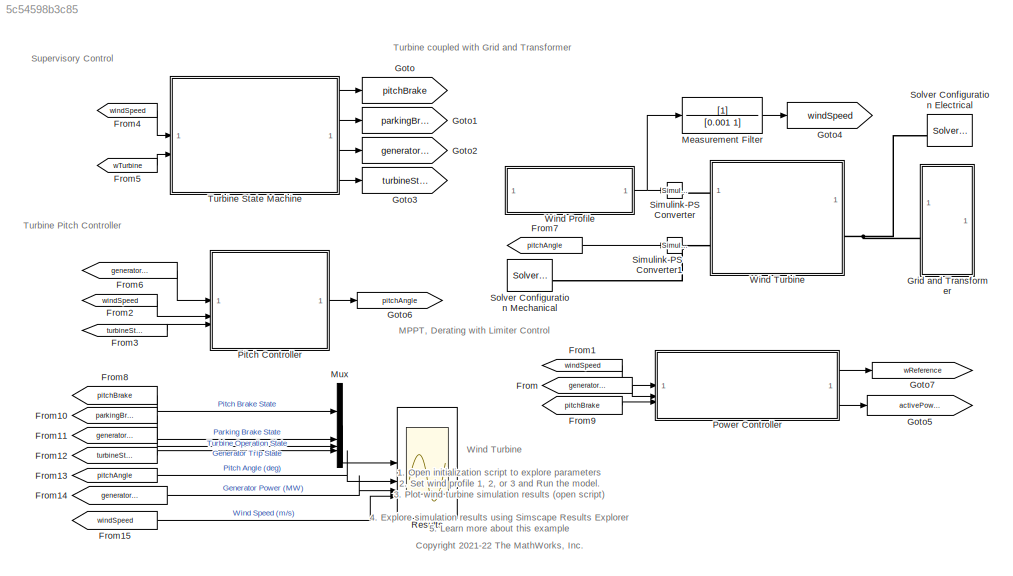
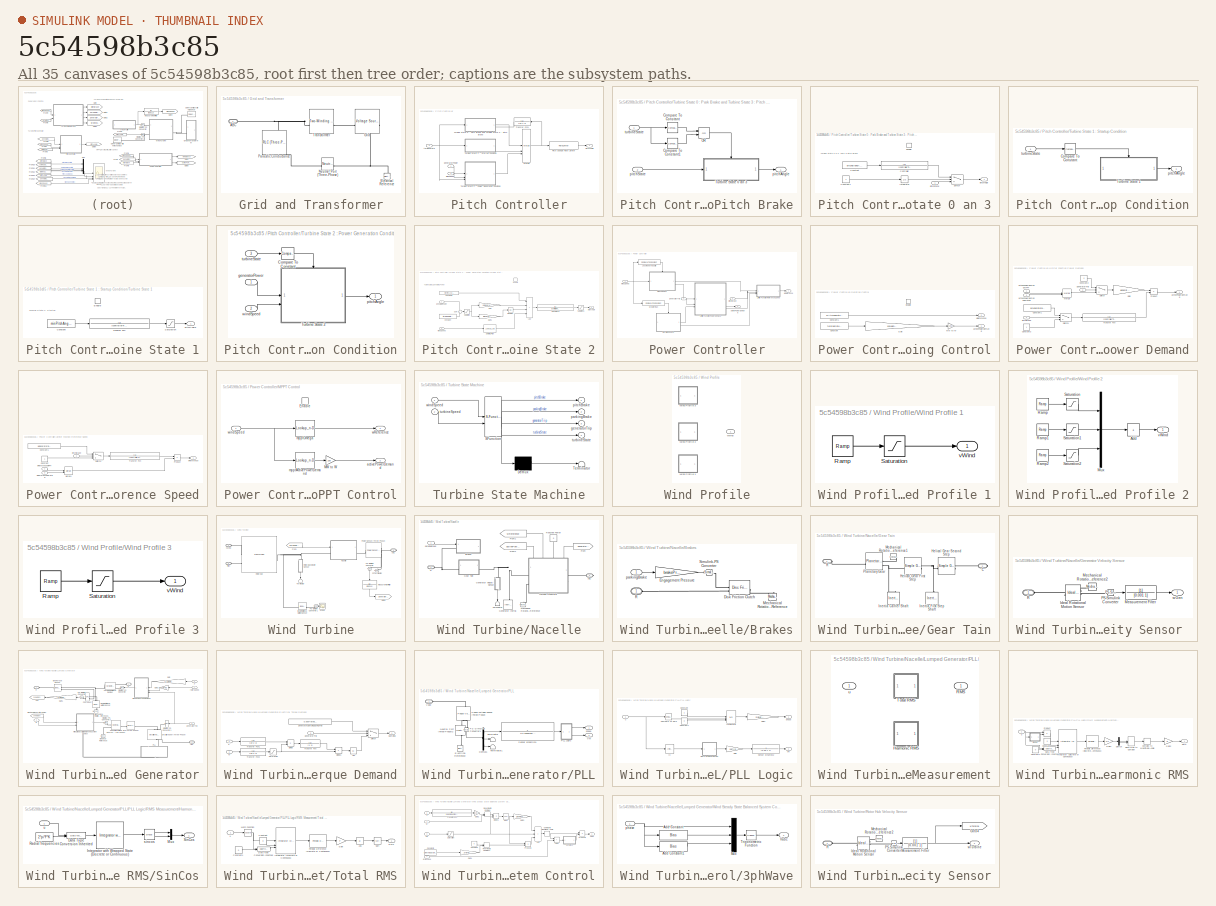
[diagram: thumbnail index - all 35 canvases of the model, root first then tree order]
MODEL slx_5c54598b3c85
KIND model
CONFIG AbsTol = 1e-3
CONFIG EnableMultiTasking = off
CONFIG FixedStep = auto
CONFIG MaxStep = auto
CONFIG MinStep = auto
CONFIG PreLoadFcn = sscv_wind_turbine_input
CONFIG RelTol = 1e-3
CONFIG SampleTimeConstraint = Unconstrained
CONFIG SolverName = ode23t
CONFIG StartTime = 0.0
CONFIG StopTime = simT
BLOCK [From] From
  GotoTag = generatorTrip
  NameLocation = left
  TagVisibility = global
BLOCK [From] From1
  GotoTag = windSpeed
  NameLocation = left
  TagVisibility = global
BLOCK [From] From10
  GotoTag = parkingBrake
  TagVisibility = global
BLOCK [From] From11
  GotoTag = generatorTrip
  TagVisibility = global
BLOCK [From] From12
  GotoTag = turbineState
  TagVisibility = global
BLOCK [From] From13
  GotoTag = pitchAngle
  TagVisibility = global
BLOCK [From] From14
  GotoTag = generatorPower
  TagVisibility = global
BLOCK [From] From15
  GotoTag = windSpeed
  TagVisibility = global
BLOCK [From] From2
  GotoTag = windSpeed
  TagVisibility = global
BLOCK [From] From3
  GotoTag = turbineState
  TagVisibility = global
BLOCK [From] From4
  GotoTag = windSpeed
  TagVisibility = global
BLOCK [From] From5
  GotoTag = wTurbine
  TagVisibility = global
BLOCK [From] From6
  GotoTag = generatorPower
  TagVisibility = global
BLOCK [From] From7
  GotoTag = pitchAngle
  TagVisibility = global
BLOCK [From] From8
  GotoTag = pitchBrake
  TagVisibility = global
BLOCK [From] From9
  GotoTag = pitchBrake
  NameLocation = left
  TagVisibility = global
BLOCK [Goto] Goto
  GotoTag = pitchBrake
  TagVisibility = global
BLOCK [Goto] Goto1
  GotoTag = parkingBrake
  TagVisibility = global
BLOCK [Goto] Goto2
  GotoTag = generatorTrip
  TagVisibility = global
BLOCK [Goto] Goto3
  GotoTag = turbineState
  TagVisibility = global
BLOCK [Goto] Goto4
  GotoTag = windSpeed
  TagVisibility = global
BLOCK [Goto] Goto5
  GotoTag = activePowerDemand
  TagVisibility = global
BLOCK [Goto] Goto6
  GotoTag = pitchAngle
  TagVisibility = global
BLOCK [Goto] Goto7
  GotoTag = wReference
  NameLocation = top
  TagVisibility = global
BLOCK [SubSystem] Grid and Transformer
BLOCK [PMIOPort] Grid and Transformer/ABC
  Side = Left
BLOCK [Reference] Grid and Transformer/Electrical Reference  REF=fl_lib/Electrical/Electrical Elements/Electrical Reference
  NameLocation = right
  SourceBlock = fl_lib/Electrical/Electrical Elements/Electrical Reference
  SourceType = Electrical Reference
BLOCK [Reference] Grid and Transformer/Grid  REF=ee_lib/Sources/Voltage
Source
(Three-Phase)
  NameLocation = top
  SourceBlock = ee_lib/Sources/Voltage\nSource\n(Three-Phase)
  SourceType = Voltage\nSource\n(Three-Phase)
BLOCK [Reference] Grid and Transformer/Neutral Port (Three-Phase)  REF=ee_lib/Connectors &
References/Neutral Port
(Three-Phase)
  NameLocation = top
  SourceBlock = ee_lib/Connectors &\nReferences/Neutral Port\n(Three-Phase)
  SourceType = Neutral Port\n(Three-Phase)
BLOCK [Reference] Grid and Transformer/Parasitic Conductance  REF=ee_lib/Passive/RLC Assemblies/RLC (Three-Phase)
  NameLocation = left
  SourceBlock = ee_lib/Passive/RLC Assemblies/RLC (Three-Phase)
  SourceType = RLC (Three-Phase)
BLOCK [Reference] Grid and Transformer/Transformer  REF=ee_lib/Passive/Transformers/Two-Winding
Transformer
(Three-Phase)
  NameLocation = top
  SourceBlock = ee_lib/Passive/Transformers/Two-Winding\nTransformer\n(Three-Phase)
  SourceType = Two-Winding\nTransformer\n(Three-Phase)
BLOCK [TransferFcn] Measurement Filter
  Denominator = [0.001 1]
  NameLocation = top
BLOCK [Mux] Mux
  DisplayOption = bar
BLOCK [SubSystem] Pitch Controller
BLOCK [Merge] Pitch Controller/Merge
  Inputs = 3
BLOCK [RateLimiter] Pitch Controller/Pitch Change Rate Limiter
  FallingSlewLimit = -actuatorRampRate
  RisingSlewLimit = actuatorRampRate
  SampleTimeMode = inherited
BLOCK [TransferFcn] Pitch Controller/Transfer Fcn1
  Denominator = [1e-4 1]
  NameLocation = top
BLOCK [SubSystem] Pitch Controller/Turbine State 0 : Park Brake and Turbine State 3 : Pitch Brake
  PortSchema = {"entries":[{"content":{"sides":[{"content":{"connectorIds":["In1"]},"type":"ConnectorPlacement.EquallySpacedRectSide","uuid":"c81c0fc4-0b31-4a43-acf3-ef02f67f12ef"},{"content":{"connectorIds":["In2","Out1"],"side":"RIGHT"},"type":"ConnectorPlacement.EquallySpacedRectSide","uuid":"c20c9bc8-a4c7-4c6f-a8fa-fe8ff88298f7"},{"content":{"connectorIds":[],"side":"TOP"},"type":"ConnectorPlacement.EquallyS...<+246ch>
BLOCK [Reference] Pitch Controller/Turbine State 0 : Park Brake and Turbine State 3 : Pitch Brake/Compare To Constant  REF=simulink/Logic and Bit
Operations/Compare
To Constant
  SourceBlock = simulink/Logic and Bit\nOperations/Compare\nTo Constant
  SourceType = Compare To Constant
BLOCK [Reference] Pitch Controller/Turbine State 0 : Park Brake and Turbine State 3 : Pitch Brake/Compare To Constant1  REF=simulink/Logic and Bit
Operations/Compare
To Constant
  SourceBlock = simulink/Logic and Bit\nOperations/Compare\nTo Constant
  SourceType = Compare To Constant
BLOCK [Logic] Pitch Controller/Turbine State 0 : Park Brake and Turbine State 3 : Pitch Brake/OR
  AllPortsSameDT = off
  IconShape = distinctive
  Operator = OR
  OutDataTypeStr = boolean
BLOCK [SubSystem] Pitch Controller/Turbine State 0 : Park Brake and Turbine State 3 : Pitch Brake/Turbine State 0 an 3
BLOCK [Constant] Pitch Controller/Turbine State 0 : Park Brake and Turbine State 3 : Pitch Brake/Turbine State 0 an 3/Constant
  Value = pitchBrakeAngle
BLOCK [Constant] Pitch Controller/Turbine State 0 : Park Brake and Turbine State 3 : Pitch Brake/Turbine State 0 an 3/Constant1
BLOCK [TransferFcn] Pitch Controller/Turbine State 0 : Park Brake and Turbine State 3 : Pitch Brake/Turbine State 0 an 3/Controller
  Denominator = [controllerTimeConstant  1]
BLOCK [EnablePort] Pitch Controller/Turbine State 0 : Park Brake and Turbine State 3 : Pitch Brake/Turbine State 0 an 3/Enable
  StatesWhenEnabling = reset
BLOCK [Integrator] Pitch Controller/Turbine State 0 : Park Brake and Turbine State 3 : Pitch Brake/Turbine State 0 an 3/Integrator
BLOCK [Switch] Pitch Controller/Turbine State 0 : Park Brake and Turbine State 3 : Pitch Brake/Turbine State 0 an 3/Switch
  Criteria = u2 > Threshold
  InputSameDT = off
  SaturateOnIntegerOverflow = off
  Threshold = controllerTimeConstant*log(1-(maxPitchAngle/pitchBrakeAngle))*(-1.01)
BLOCK [Outport] Pitch Controller/Turbine State 0 : Park Brake and Turbine State 3 : Pitch Brake/Turbine State 0 an 3/pitchAngle
BLOCK [Inport] Pitch Controller/Turbine State 0 : Park Brake and Turbine State 3 : Pitch Brake/Turbine State 0 an 3/pitchState
BLOCK [Outport] Pitch Controller/Turbine State 0 : Park Brake and Turbine State 3 : Pitch Brake/pitchAngle
BLOCK [Inport] Pitch Controller/Turbine State 0 : Park Brake and Turbine State 3 : Pitch Brake/pitchState
  Port = 2
BLOCK [Inport] Pitch Controller/Turbine State 0 : Park Brake and Turbine State 3 : Pitch Brake/turbineState
BLOCK [SubSystem] Pitch Controller/Turbine State 1 : Startup Condition
BLOCK [Reference] Pitch Controller/Turbine State 1 : Startup Condition/Compare To Constant  REF=simulink/Logic and Bit
Operations/Compare
To Constant
  SourceBlock = simulink/Logic and Bit\nOperations/Compare\nTo Constant
  SourceType = Compare To Constant
BLOCK [SubSystem] Pitch Controller/Turbine State 1 : Startup Condition/Turbine State 1
BLOCK [Constant] Pitch Controller/Turbine State 1 : Startup Condition/Turbine State 1/Constant
  Value = minPitchAngle
BLOCK [EnablePort] Pitch Controller/Turbine State 1 : Startup Condition/Turbine State 1/Enable
  StatesWhenEnabling = reset
BLOCK [Saturate] Pitch Controller/Turbine State 1 : Startup Condition/Turbine State 1/Saturation
  LowerLimit = minPitchAngle
  UpperLimit = maxPitchAngle
BLOCK [TransferFcn] Pitch Controller/Turbine State 1 : Startup Condition/Turbine State 1/Transfer Fcn
  Denominator = [controllerTimeConstant 1]
BLOCK [Outport] Pitch Controller/Turbine State 1 : Startup Condition/Turbine State 1/pitchAngle
BLOCK [Outport] Pitch Controller/Turbine State 1 : Startup Condition/pitchAngle
BLOCK [Inport] Pitch Controller/Turbine State 1 : Startup Condition/turbineState
BLOCK [SubSystem] Pitch Controller/Turbine State 2 : Power Generation Condition
BLOCK [Reference] Pitch Controller/Turbine State 2 : Power Generation Condition/Compare To Constant  REF=simulink/Logic and Bit
Operations/Compare
To Constant
  SourceBlock = simulink/Logic and Bit\nOperations/Compare\nTo Constant
  SourceType = Compare To Constant
BLOCK [SubSystem] Pitch Controller/Turbine State 2 : Power Generation Condition/Turbine State 2
BLOCK [Sum] Pitch Controller/Turbine State 2 : Power Generation Condition/Turbine State 2/Add
  IconShape = rectangular
  Inputs = ++++
BLOCK [Constant] Pitch Controller/Turbine State 2 : Power Generation Condition/Turbine State 2/Constant
  Value = turbineRatedPower
BLOCK [Constant] Pitch Controller/Turbine State 2 : Power Generation Condition/Turbine State 2/Constant1
  Value = minPitchAngle
BLOCK [Lookup_n-D] Pitch Controller/Turbine State 2 : Power Generation Condition/Turbine State 2/Derating Pitch
  BreakpointsForDimension1 = Derating(:,1)
  InputPortMap = u0
  InternalRulePriority = Speed
  NameLocation = top
  NumberOfTableDimensions = 1
  RndMeth = Simplest
  Table = Derating(:,2)-minPitchAngle
BLOCK [EnablePort] Pitch Controller/Turbine State 2 : Power Generation Condition/Turbine State 2/Enable
  StatesWhenEnabling = reset
BLOCK [Gain] Pitch Controller/Turbine State 2 : Power Generation Condition/Turbine State 2/Gain
  Gain = pGenerationGain
BLOCK [Gain] Pitch Controller/Turbine State 2 : Power Generation Condition/Turbine State 2/Gain1
  Gain = iGenerationGain
BLOCK [Integrator] Pitch Controller/Turbine State 2 : Power Generation Condition/Turbine State 2/Integrator
BLOCK [Saturate] Pitch Controller/Turbine State 2 : Power Generation Condition/Turbine State 2/Saturation
  LowerLimit = 0
  UpperLimit = inf
BLOCK [Saturate] Pitch Controller/Turbine State 2 : Power Generation Condition/Turbine State 2/Saturation1
  LowerLimit = minPitchAngle
  UpperLimit = maxPitchAngle
BLOCK [Sum] Pitch Controller/Turbine State 2 : Power Generation Condition/Turbine State 2/Sum
  Inputs = +-
BLOCK [TransferFcn] Pitch Controller/Turbine State 2 : Power Generation Condition/Turbine State 2/Transfer Fcn
  Denominator = [controllerTimeConstant 1]
BLOCK [Inport] Pitch Controller/Turbine State 2 : Power Generation Condition/Turbine State 2/generatorPower
BLOCK [Outport] Pitch Controller/Turbine State 2 : Power Generation Condition/Turbine State 2/pitchAngle
BLOCK [Inport] Pitch Controller/Turbine State 2 : Power Generation Condition/Turbine State 2/windSpeed
  Port = 2
BLOCK [Inport] Pitch Controller/Turbine State 2 : Power Generation Condition/generatorPower
  NameLocation = left
BLOCK [Outport] Pitch Controller/Turbine State 2 : Power Generation Condition/pitchAngle
BLOCK [Inport] Pitch Controller/Turbine State 2 : Power Generation Condition/turbineState
  Port = 3
BLOCK [Inport] Pitch Controller/Turbine State 2 : Power Generation Condition/windSpeed
  NameLocation = left
  Port = 2
BLOCK [Inport] Pitch Controller/generatorPower
  NameLocation = top
BLOCK [Outport] Pitch Controller/pitchAngle
BLOCK [Inport] Pitch Controller/turbineState
  Port = 3
BLOCK [Inport] Pitch Controller/windSpeed
  NameLocation = top
  Port = 2
BLOCK [SubSystem] Power Controller
BLOCK [SubSystem] Power Controller/Derating Control
BLOCK [Constant] Power Controller/Derating Control/Constant
  Value = turbineRatedPower
BLOCK [Constant] Power Controller/Derating Control/Constant1
  Value = wAtGeneratorRatedPower
BLOCK [EnablePort] Power Controller/Derating Control/Enable
  StatesWhenEnabling = reset
BLOCK [Gain] Power Controller/Derating Control/Gain
  Gain = 100/generatorEfficiency
BLOCK [Gain] Power Controller/Derating Control/MW to W
  Gain = 1e6
BLOCK [Outport] Power Controller/Derating Control/activePowerDemand
BLOCK [Outport] Power Controller/Derating Control/wReference
  Port = 2
BLOCK [Reference] Power Controller/Greater than  REF=simulink/Logic and Bit
Operations/Compare
To Constant
  SourceBlock = simulink/Logic and Bit\nOperations/Compare\nTo Constant
  SourceType = Compare To Constant
BLOCK [Reference] Power Controller/Less than or equal to  REF=simulink/Logic and Bit
Operations/Compare
To Constant
  SourceBlock = simulink/Logic and Bit\nOperations/Compare\nTo Constant
  SourceType = Compare To Constant
BLOCK [SubSystem] Power Controller/Limiter Function Power Demand
  PortSchema = {"entries":[{"content":{"sides":[{"content":{"connectorIds":["In1","In2","In3"]},"type":"ConnectorPlacement.EquallySpacedRectSide","uuid":"b03cf57d-370b-4fa1-bd93-9b836e03697e"},{"content":{"connectorIds":["In4","Out1"],"side":"RIGHT"},"type":"ConnectorPlacement.EquallySpacedRectSide","uuid":"152758c3-43df-447a-a50f-afca466b3eeb"},{"content":{"connectorIds":[],"side":"TOP"},"type":"ConnectorPlacem...<+258ch>
BLOCK [Constant] Power Controller/Limiter Function Power Demand/Constant1
  NameLocation = left
  Value = pGeneratorBrakeLimit
BLOCK [Constant] Power Controller/Limiter Function Power Demand/Constant2
  NameLocation = left
  Value = 0
BLOCK [Constant] Power Controller/Limiter Function Power Demand/Constant3
  NameLocation = left
BLOCK [Gain] Power Controller/Limiter Function Power Demand/Gain
  Gain = generatorEfficiency/100
BLOCK [Merge] Power Controller/Limiter Function Power Demand/Merge
BLOCK [Product] Power Controller/Limiter Function Power Demand/Product
BLOCK [Switch] Power Controller/Limiter Function Power Demand/Switch
  Criteria = u2 > Threshold
  InputSameDT = off
  SaturateOnIntegerOverflow = off
  Threshold = 0.5
BLOCK [Switch] Power Controller/Limiter Function Power Demand/Switch1
  Criteria = u2 > Threshold
  InputSameDT = off
  SaturateOnIntegerOverflow = off
  Threshold = 0.5
BLOCK [TransferFcn] Power Controller/Limiter Function Power Demand/Transfer Fcn
  Denominator = [controllerTimeConstant/2 1]
BLOCK [Outport] Power Controller/Limiter Function Power Demand/activePowerDemand
BLOCK [Inport] Power Controller/Limiter Function Power Demand/activePowerDemandDerating
  Port = 3
BLOCK [Inport] Power Controller/Limiter Function Power Demand/activePowerDemandMPPT
  NameLocation = top
BLOCK [Inport] Power Controller/Limiter Function Power Demand/generatorTrip
  NameLocation = top
  Port = 2
BLOCK [Inport] Power Controller/Limiter Function Power Demand/pitchBrake
  Port = 4
BLOCK [SubSystem] Power Controller/Limiter Function Reference Speed
BLOCK [Constant] Power Controller/Limiter Function Reference Speed/Constant
BLOCK [Constant] Power Controller/Limiter Function Reference Speed/Constant1
  NameLocation = left
  Value = wGeneratorBrakeLimit
BLOCK [Merge] Power Controller/Limiter Function Reference Speed/Merge1
BLOCK [Product] Power Controller/Limiter Function Reference Speed/Product
BLOCK [Switch] Power Controller/Limiter Function Reference Speed/Switch1
  Criteria = u2 > Threshold
  InputSameDT = off
  SaturateOnIntegerOverflow = off
  Threshold = 0.5
BLOCK [TransferFcn] Power Controller/Limiter Function Reference Speed/Transfer Fcn
  Denominator = [controllerTimeConstant/2 1]
BLOCK [Inport] Power Controller/Limiter Function Reference Speed/pitchBrake
  NameLocation = top
  Port = 2
BLOCK [Outport] Power Controller/Limiter Function Reference Speed/wReference
BLOCK [Inport] Power Controller/Limiter Function Reference Speed/wReferenceDerating
  Port = 3
BLOCK [Inport] Power Controller/Limiter Function Reference Speed/wReferenceMPPT
  NameLocation = top
BLOCK [SubSystem] Power Controller/MPPT Control
BLOCK [EnablePort] Power Controller/MPPT Control/Enable
  StatesWhenEnabling = reset
BLOCK [Gain] Power Controller/MPPT Control/MW to W
  Gain = 1e6
BLOCK [Outport] Power Controller/MPPT Control/activePowerDemand
  Port = 2
BLOCK [Lookup_n-D] Power Controller/MPPT Control/mpptActivePowerDemand
  BreakpointsForDimension1 = mpptWindSpeed
  InputPortMap = u0
  InternalRulePriority = Speed
  NameLocation = top
  NumberOfTableDimensions = 1
  RndMeth = Simplest
  Table = mpptPower
BLOCK [Lookup_n-D] Power Controller/MPPT Control/mpptOmega
  BreakpointsForDimension1 = mpptWindSpeed
  InputPortMap = u0
  InternalRulePriority = Speed
  NameLocation = top
  NumberOfTableDimensions = 1
  RndMeth = Simplest
  Table = mpptOmega
BLOCK [Outport] Power Controller/MPPT Control/wReference
BLOCK [Inport] Power Controller/MPPT Control/windSpeed
BLOCK [Outport] Power Controller/activePowerDemand
  Port = 2
BLOCK [Inport] Power Controller/generatorTrip
  NameLocation = top
  Port = 2
BLOCK [Inport] Power Controller/pitchBrake
  NameLocation = top
  Port = 3
BLOCK [Outport] Power Controller/wReference
BLOCK [Inport] Power Controller/windSpeed
BLOCK [Scope] Results
  Floating = off
  NumInputPorts = 4
  ScopeSpecificationString = Simulink.scopes.TimeScopeBlockCfg('CurrentConfiguration', extmgr.ConfigurationSet(extmgr.Configuration('Core','General UI',true,'FigureColor',[1 1 1]),extmgr.Configuration('Core','Source UI',true),extmgr.Configuration('Sources','WiredSimulink',true,'DataLoggingVariableName','ScopeData1'),extmgr.Configuration('Visuals','Time Domain',true,'SerializedDisplays',{struct('MinYLimReal','-0.375','MaxYLimR...<+5059ch>
BLOCK [Reference] Simulink-PS Converter  REF=nesl_utility/Simulink-PS
Converter
  SourceBlock = nesl_utility/Simulink-PS\nConverter
  SourceType = Simulink-PS\nConverter
BLOCK [Reference] Simulink-PS Converter1  REF=nesl_utility/Simulink-PS
Converter
  SourceBlock = nesl_utility/Simulink-PS\nConverter
  SourceType = Simulink-PS\nConverter
BLOCK [Reference] Solver Configuration Electrical  REF=nesl_utility/Solver
Configuration
  NameLocation = top
  SourceBlock = nesl_utility/Solver\nConfiguration
  SourceType = Solver\nConfiguration
BLOCK [Reference] Solver Configuration Mechanical  REF=nesl_utility/Solver
Configuration
  SourceBlock = nesl_utility/Solver\nConfiguration
  SourceType = Solver\nConfiguration
BLOCK [SubSystem] Turbine State Machine
  ErrorFcn = Stateflow.Translate.translate
  PermitHierarchicalResolution = ExplicitOnly
  SFBlockType = Chart
  TreatAsAtomicUnit = on
BLOCK [Demux] Turbine State Machine/ Demux 
  Outputs = 1
BLOCK [S-Function] Turbine State Machine/ SFunction 
  EnableBusSupport = on
  FunctionName = sf_sfun
  PortCounts = [2 5]
  SFcnIsStateOwnerBlock = off
  SFunctionDeploymentMode = off
  Tag = Stateflow S-Function 1
BLOCK [Terminator] Turbine State Machine/ Terminator 
BLOCK [Outport] Turbine State Machine/generatorTrip
  Port = 3
  VectorParamsAs1DForOutWhenUnconnected = off
BLOCK [Outport] Turbine State Machine/parkingBrake
  Port = 2
  VectorParamsAs1DForOutWhenUnconnected = off
BLOCK [Outport] Turbine State Machine/pitchBrake
  VectorParamsAs1DForOutWhenUnconnected = off
BLOCK [Inport] Turbine State Machine/turbineSpeed
  Port = 2
BLOCK [Outport] Turbine State Machine/turbineState
  Port = 4
  VectorParamsAs1DForOutWhenUnconnected = off
BLOCK [Inport] Turbine State Machine/windSpeed
BLOCK [SubSystem] Wind Profile
  NameLocation = top
  Variant = on
  VariantControl = Choice
BLOCK [SubSystem] Wind Profile/Wind Profile 1
  VariantControl = windProfile1
BLOCK [Reference] Wind Profile/Wind Profile 1/Ramp  REF=simulink/Sources/Ramp
  SourceBlock = simulink/Sources/Ramp
  SourceType = Ramp
BLOCK [Saturate] Wind Profile/Wind Profile 1/Saturation
  LowerLimit = 0
  UpperLimit = 15
BLOCK [Outport] Wind Profile/Wind Profile 1/vWind
BLOCK [SubSystem] Wind Profile/Wind Profile 2
  NameLocation = top
  VariantControl = windProfile2
BLOCK [Sum] Wind Profile/Wind Profile 2/Add
  IconShape = rectangular
  Inputs = +
BLOCK [Mux] Wind Profile/Wind Profile 2/Mux
  DisplayOption = bar
  Inputs = 3
BLOCK [Reference] Wind Profile/Wind Profile 2/Ramp  REF=simulink/Sources/Ramp
  SourceBlock = simulink/Sources/Ramp
  SourceType = Ramp
BLOCK [Reference] Wind Profile/Wind Profile 2/Ramp1  REF=simulink/Sources/Ramp
  SourceBlock = simulink/Sources/Ramp
  SourceType = Ramp
BLOCK [Reference] Wind Profile/Wind Profile 2/Ramp2  REF=simulink/Sources/Ramp
  SourceBlock = simulink/Sources/Ramp
  SourceType = Ramp
BLOCK [Saturate] Wind Profile/Wind Profile 2/Saturation
  LowerLimit = 0
  UpperLimit = 10
BLOCK [Saturate] Wind Profile/Wind Profile 2/Saturation1
  LowerLimit = 0
  UpperLimit = 12
BLOCK [Saturate] Wind Profile/Wind Profile 2/Saturation2
  LowerLimit = -7
  UpperLimit = 0
BLOCK [Outport] Wind Profile/Wind Profile 2/vWind
BLOCK [SubSystem] Wind Profile/Wind Profile 3
  VariantControl = windProfile3
BLOCK [Reference] Wind Profile/Wind Profile 3/Ramp  REF=simulink/Sources/Ramp
  SourceBlock = simulink/Sources/Ramp
  SourceType = Ramp
BLOCK [Saturate] Wind Profile/Wind Profile 3/Saturation
  LowerLimit = 0
  UpperLimit = 17
BLOCK [Outport] Wind Profile/Wind Profile 3/vWind
BLOCK [Outport] Wind Profile/vWind
BLOCK [SubSystem] Wind Turbine
BLOCK [PMIOPort] Wind Turbine/ABC
  NameLocation = top
  Port = 3
  Side = Right
BLOCK [From] Wind Turbine/From
  GotoTag = parkingBrake
  TagVisibility = global
BLOCK [Goto] Wind Turbine/Goto5
  GotoTag = generatorPower
  TagVisibility = global
BLOCK [Reference] Wind Turbine/Ideal Rotational Motion Sensor  REF=fl_lib/Mechanical/Mechanical Sensors/Ideal Rotational
Motion Sensor
  SourceBlock = fl_lib/Mechanical/Mechanical Sensors/Ideal Rotational\nMotion Sensor
  SourceType = Ideal Rotational\nMotion Sensor
BLOCK [TransferFcn] Wind Turbine/Measurement Filter
  Denominator = [0.001 1]
  NameLocation = left
BLOCK [SubSystem] Wind Turbine/Nacelle
BLOCK [PMIOPort] Wind Turbine/Nacelle/ABC
  Port = 2
  Side = Right
BLOCK [SubSystem] Wind Turbine/Nacelle/Brakes
BLOCK [Reference] Wind Turbine/Nacelle/Brakes/Disk Friction Clutch  REF=sdl_lib/Clutches/Disc Friction Clutch
  SourceBlock = sdl_lib/Clutches/Disc Friction Clutch
  SourceType = Disc Friction Clutch
BLOCK [Gain] Wind Turbine/Nacelle/Brakes/Engagement Pressure
  Gain = brakePressure
  NameLocation = top
BLOCK [Reference] Wind Turbine/Nacelle/Brakes/Mechanical Rotational Reference  REF=fl_lib/Mechanical/Rotational Elements/Mechanical
Rotational Reference
  NameLocation = right
  SourceBlock = fl_lib/Mechanical/Rotational Elements/Mechanical\nRotational Reference
  SourceType = Mechanical\nRotational Reference
BLOCK [PMIOPort] Wind Turbine/Nacelle/Brakes/R
  Side = Left
  Tag = PMCPort
BLOCK [Reference] Wind Turbine/Nacelle/Brakes/Simulink-PS Converter  REF=nesl_utility/Simulink-PS
Converter
  SourceBlock = nesl_utility/Simulink-PS\nConverter
  SourceType = Simulink-PS\nConverter
BLOCK [Inport] Wind Turbine/Nacelle/Brakes/parkingBrake
  NameLocation = top
BLOCK [From] Wind Turbine/Nacelle/From
  GotoTag = generatorTrip
  TagVisibility = global
BLOCK [From] Wind Turbine/Nacelle/From1
  GotoTag = wReference
  TagVisibility = global
BLOCK [From] Wind Turbine/Nacelle/From2
  GotoTag = activePowerDemand
  TagVisibility = global
BLOCK [SubSystem] Wind Turbine/Nacelle/Gear Tain
BLOCK [PMIOPort] Wind Turbine/Nacelle/Gear Tain/C
  Port = 2
  Side = Right
BLOCK [Reference] Wind Turbine/Nacelle/Gear Tain/Helical Gear First Step  REF=sdl_lib/Gears/Simple Gear
  SourceBlock = sdl_lib/Gears/Simple Gear
  SourceType = Simple Gear
BLOCK [Reference] Wind Turbine/Nacelle/Gear Tain/Helical Gear Second Step  REF=sdl_lib/Gears/Simple Gear
  SourceBlock = sdl_lib/Gears/Simple Gear
  SourceType = Simple Gear
BLOCK [Reference] Wind Turbine/Nacelle/Gear Tain/Inertia Carrier Shaft  REF=fl_lib/Mechanical/Rotational Elements/Inertia
  NameLocation = right
  SourceBlock = fl_lib/Mechanical/Rotational Elements/Inertia
  SourceType = Inertia
BLOCK [Reference] Wind Turbine/Nacelle/Gear Tain/Inertia First Step Shaft  REF=fl_lib/Mechanical/Rotational Elements/Inertia
  NameLocation = right
  SourceBlock = fl_lib/Mechanical/Rotational Elements/Inertia
  SourceType = Inertia
BLOCK [Reference] Wind Turbine/Nacelle/Gear Tain/Mechanical Rotational Reference1  REF=fl_lib/Mechanical/Rotational Elements/Mechanical
Rotational Reference
  NameLocation = top
  SourceBlock = fl_lib/Mechanical/Rotational Elements/Mechanical\nRotational Reference
  SourceType = Mechanical\nRotational Reference
BLOCK [Reference] Wind Turbine/Nacelle/Gear Tain/Planetary Gear  REF=sdl_lib/Gears/Planetary Gear
  SourceBlock = sdl_lib/Gears/Planetary Gear
  SourceType = Planetary Gear
BLOCK [PMIOPort] Wind Turbine/Nacelle/Gear Tain/R
  Side = Left
BLOCK [Reference] Wind Turbine/Nacelle/Generator Inertia  REF=fl_lib/Mechanical/Rotational Elements/Inertia
  SourceBlock = fl_lib/Mechanical/Rotational Elements/Inertia
  SourceType = Inertia
BLOCK [SubSystem] Wind Turbine/Nacelle/Generator Velocity Sensor 
  NameLocation = left
BLOCK [Reference] Wind Turbine/Nacelle/Generator Velocity Sensor /Ideal Rotational Motion Sensor  REF=fl_lib/Mechanical/Mechanical Sensors/Ideal Rotational
Motion Sensor
  SourceBlock = fl_lib/Mechanical/Mechanical Sensors/Ideal Rotational\nMotion Sensor
  SourceType = Ideal Rotational\nMotion Sensor
BLOCK [TransferFcn] Wind Turbine/Nacelle/Generator Velocity Sensor /Measurement Filter
  Denominator = [0.001 1]
BLOCK [Reference] Wind Turbine/Nacelle/Generator Velocity Sensor /Mechanical Rotational Reference2  REF=fl_lib/Mechanical/Rotational Elements/Mechanical
Rotational Reference
  NameLocation = right
  SourceBlock = fl_lib/Mechanical/Rotational Elements/Mechanical\nRotational Reference
  SourceType = Mechanical\nRotational Reference
BLOCK [Reference] Wind Turbine/Nacelle/Generator Velocity Sensor /PS-Simulink Converter  REF=nesl_utility/PS-Simulink
Converter
  SourceBlock = nesl_utility/PS-Simulink\nConverter
  SourceType = PS-Simulink\nConverter
BLOCK [PMIOPort] Wind Turbine/Nacelle/Generator Velocity Sensor /R
  Side = Left
BLOCK [Outport] Wind Turbine/Nacelle/Generator Velocity Sensor /wGen
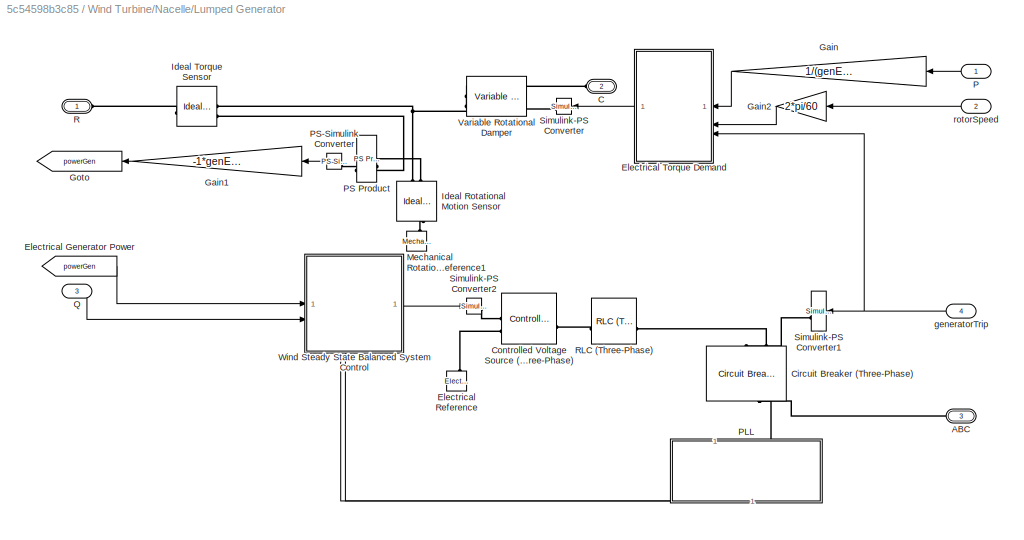
BLOCK [SubSystem] Wind Turbine/Nacelle/Lumped Generator
  PortSchema = {"entries":[{"content":{"sides":[{"content":{"connectorIds":["LConn1","LConn2"]},"type":"ConnectorPlacement.EquallySpacedRectSide","uuid":"600b86f2-4f8f-493b-ad26-1faa8bb85470"},{"content":{"connectorIds":["RConn1"],"side":"RIGHT"},"type":"ConnectorPlacement.EquallySpacedRectSide","uuid":"9e1649b7-9973-42e8-ab8f-93eff55c3d74"},{"content":{"connectorIds":["In1","In2","In3","In4"],"side":"TOP"},"typ...<+421ch>
BLOCK [PMIOPort] Wind Turbine/Nacelle/Lumped Generator/ABC
  Port = 3
  Side = Right
BLOCK [PMIOPort] Wind Turbine/Nacelle/Lumped Generator/C
  NameLocation = top
  Port = 2
  Side = Left
BLOCK [Reference] Wind Turbine/Nacelle/Lumped Generator/Circuit Breaker (Three-Phase)  REF=ee_lib/Switches & Breakers/Circuit Breaker
(Three-Phase)
  NameLocation = right
  SourceBlock = ee_lib/Switches & Breakers/Circuit Breaker\n(Three-Phase)
  SourceType = Circuit Breaker\n(Three-Phase)
BLOCK [Reference] Wind Turbine/Nacelle/Lumped Generator/Controlled Voltage Source (Three-Phase)  REF=ee_lib/Sources/Controlled Voltage
Source
(Three-Phase)
  SourceBlock = ee_lib/Sources/Controlled Voltage\nSource\n(Three-Phase)
  SourceType = Controlled Voltage\nSource\n(Three-Phase)
BLOCK [From] Wind Turbine/Nacelle/Lumped Generator/Electrical Generator Power
  GotoTag = powerGen
  NameLocation = top
  TagVisibility = global
BLOCK [Reference] Wind Turbine/Nacelle/Lumped Generator/Electrical Reference  REF=fl_lib/Electrical/Electrical Elements/Electrical Reference
  NameLocation = right
  SourceBlock = fl_lib/Electrical/Electrical Elements/Electrical Reference
  SourceType = Electrical Reference
BLOCK [SubSystem] Wind Turbine/Nacelle/Lumped Generator/Electrical Torque Demand
BLOCK [Abs] Wind Turbine/Nacelle/Lumped Generator/Electrical Torque Demand/Abs
  SaturateOnIntegerOverflow = off
BLOCK [Outport] Wind Turbine/Nacelle/Lumped Generator/Electrical Torque Demand/Damping
BLOCK [Product] Wind Turbine/Nacelle/Lumped Generator/Electrical Torque Demand/Divide
  Inputs = */
BLOCK [Product] Wind Turbine/Nacelle/Lumped Generator/Electrical Torque Demand/Divide1
  Inputs = */
BLOCK [Inport] Wind Turbine/Nacelle/Lumped Generator/Electrical Torque Demand/P
BLOCK [Saturate] Wind Turbine/Nacelle/Lumped Generator/Electrical Torque Demand/Saturation
  LowerLimit = 0.2*ratedSpeed*2*pi/60
  UpperLimit = inf
BLOCK [Switch] Wind Turbine/Nacelle/Lumped Generator/Electrical Torque Demand/Switch
  Criteria = u2 > Threshold
  InputSameDT = off
  SaturateOnIntegerOverflow = off
  Threshold = 0.5
BLOCK [TransferFcn] Wind Turbine/Nacelle/Lumped Generator/Electrical Torque Demand/Transfer Fcn
  Denominator = [1 1]
BLOCK [TransferFcn] Wind Turbine/Nacelle/Lumped Generator/Electrical Torque Demand/Transfer Fcn1
  Denominator = [1e-2 1]
BLOCK [TransferFcn] Wind Turbine/Nacelle/Lumped Generator/Electrical Torque Demand/Transfer Fcn2
  Denominator = [1e-2 1]
BLOCK [Inport] Wind Turbine/Nacelle/Lumped Generator/Electrical Torque Demand/W
  Port = 2
BLOCK [Constant] Wind Turbine/Nacelle/Lumped Generator/Electrical Torque Demand/generatorDampingDuringTrip
  Value = 0.005*ratedPower/(ratedSpeed*2*pi/60)^2
BLOCK [Inport] Wind Turbine/Nacelle/Lumped Generator/Electrical Torque Demand/generatorTrip
  Port = 3
BLOCK [Gain] Wind Turbine/Nacelle/Lumped Generator/Gain
  Gain = 1/(genEfficiency*0.01)
  NameLocation = top
BLOCK [Gain] Wind Turbine/Nacelle/Lumped Generator/Gain1
  Gain = -1*genEfficiency*0.01
  NameLocation = top
BLOCK [Gain] Wind Turbine/Nacelle/Lumped Generator/Gain2
  Gain = 2*pi/60
  NameLocation = top
BLOCK [Goto] Wind Turbine/Nacelle/Lumped Generator/Goto
  GotoTag = powerGen
  NameLocation = top
  TagVisibility = global
BLOCK [Reference] Wind Turbine/Nacelle/Lumped Generator/Ideal Rotational Motion Sensor  REF=fl_lib/Mechanical/Mechanical Sensors/Ideal Rotational
Motion Sensor
  NameLocation = right
  SourceBlock = fl_lib/Mechanical/Mechanical Sensors/Ideal Rotational\nMotion Sensor
  SourceType = Ideal Rotational\nMotion Sensor
BLOCK [Reference] Wind Turbine/Nacelle/Lumped Generator/Ideal Torque Sensor  REF=fl_lib/Mechanical/Mechanical Sensors/Ideal Torque Sensor
  SourceBlock = fl_lib/Mechanical/Mechanical Sensors/Ideal Torque Sensor
  SourceType = Ideal Torque Sensor
BLOCK [Reference] Wind Turbine/Nacelle/Lumped Generator/Mechanical Rotational Reference1  REF=fl_lib/Mechanical/Rotational Elements/Mechanical
Rotational Reference
  NameLocation = right
  SourceBlock = fl_lib/Mechanical/Rotational Elements/Mechanical\nRotational Reference
  SourceType = Mechanical\nRotational Reference
BLOCK [Inport] Wind Turbine/Nacelle/Lumped Generator/P
  NameLocation = top
BLOCK [SubSystem] Wind Turbine/Nacelle/Lumped Generator/PLL
  NameLocation = right
  PortSchema = {"entries":[{"content":{"sides":[{"content":{"connectorIds":["LConn1"]},"type":"ConnectorPlacement.EquallySpacedRectSide","uuid":"d52864e1-db35-4dad-add5-1ee067043f1c"},{"content":{"connectorIds":[],"side":"RIGHT"},"type":"ConnectorPlacement.EquallySpacedRectSide","uuid":"a5ba0e67-56ea-44cb-9ec3-4038d29660fe"},{"content":{"connectorIds":[],"side":"TOP"},"type":"ConnectorPlacement.EquallySpacedRect...<+394ch>
BLOCK [Demux] Wind Turbine/Nacelle/Lumped Generator/PLL/Demux1
  Outputs = 3
BLOCK [Reference] Wind Turbine/Nacelle/Lumped Generator/PLL/Electrical Reference2  REF=fl_lib/Electrical/Electrical Elements/Electrical Reference
  NameLocation = left
  SourceBlock = fl_lib/Electrical/Electrical Elements/Electrical Reference
  SourceType = Electrical Reference
BLOCK [Reference] Wind Turbine/Nacelle/Lumped Generator/PLL/Neutral Port (Three-Phase)2  REF=ee_lib/Connectors &
References/Neutral Port
(Three-Phase)
  NameLocation = right
  SourceBlock = ee_lib/Connectors &\nReferences/Neutral Port\n(Three-Phase)
  SourceType = Neutral Port\n(Three-Phase)
BLOCK [SubSystem] Wind Turbine/Nacelle/Lumped Generator/PLL/PLL Logic
BLOCK [Reference] Wind Turbine/Nacelle/Lumped Generator/PLL/PLL Logic/Compare To Zero  REF=simulink/Logic and Bit
Operations/Compare
To Zero
  SourceBlock = simulink/Logic and Bit\nOperations/Compare\nTo Zero
  SourceType = Compare To Zero
BLOCK [Constant] Wind Turbine/Nacelle/Lumped Generator/PLL/PLL Logic/Constant
  NameLocation = top
BLOCK [Constant] Wind Turbine/Nacelle/Lumped Generator/PLL/PLL Logic/Constant1
  Value = 0
BLOCK [Gain] Wind Turbine/Nacelle/Lumped Generator/PLL/PLL Logic/Gain
  Gain = sqrt(2)
BLOCK [Gain] Wind Turbine/Nacelle/Lumped Generator/PLL/PLL Logic/Gain1
  Gain = 2*pi*gridFrequency
BLOCK [InitialCondition] Wind Turbine/Nacelle/Lumped Generator/PLL/PLL Logic/IC
  Value = 1e-4
BLOCK [Integrator] Wind Turbine/Nacelle/Lumped Generator/PLL/PLL Logic/Integrator
  ExternalReset = rising
  InitialConditionSource = external
  WrapState = on
  WrappedStateLowerValue = 0
  WrappedStateUpperValue = pi*2
BLOCK [SubSystem] Wind Turbine/Nacelle/Lumped Generator/PLL/PLL Logic/RMS Measurement
  CloseFcn = ee_sli_rtmsupport( 'closefcn', gcbh );
  CopyFcn = ee_sli_rtmsupport( 'copyfcn', gcbh );
  DeleteFcn = ee_sli_rtmsupport( 'deletefcn', gcbh );
  LabelModeActiveChoice = Total
  LoadFcn = ee_sli_rtmsupport( 'loadfcn', gcbh );
  ModelCloseFcn = ee_sli_rtmsupport( 'modelclosefcn', gcbh );
  OpenFcn = ee_sli_rtmsupport( 'openfcn', gcbh );
  PostSaveFcn = ee_sli_rtmsupport( 'postsavefcn', gcbh );
  PreCopyFcn = ee_sli_rtmsupport( 'precopyfcn', gcbh );
  PreDeleteFcn = ee_sli_rtmsupport( 'predeletefcn', gcbh );
  Variant = on
  VariantControlMode = label
BLOCK [SubSystem] Wind Turbine/Nacelle/Lumped Generator/PLL/PLL Logic/RMS Measurement/Harmonic RMS
  VariantControl = Harmonic
BLOCK [ComplexToMagnitudeAngle] Wind Turbine/Nacelle/Lumped Generator/PLL/PLL Logic/RMS Measurement/Harmonic RMS/Complex to Magnitude-Angle
  Output = Magnitude
BLOCK [Constant] Wind Turbine/Nacelle/Lumped Generator/PLL/PLL Logic/RMS Measurement/Harmonic RMS/Constant
  Value = 0
BLOCK [Constant] Wind Turbine/Nacelle/Lumped Generator/PLL/PLL Logic/RMS Measurement/Harmonic RMS/Constant1
  Value = 0
BLOCK [Reference] Wind Turbine/Nacelle/Lumped Generator/PLL/PLL Logic/RMS Measurement/Harmonic RMS/Data Type Conversion Inherited  REF=simulink/Signal
Attributes/Data Type
Conversion
Inherited
  SourceBlock = simulink/Signal\nAttributes/Data Type\nConversion\nInherited
  SourceType = Conversion Inherited
BLOCK [Demux] Wind Turbine/Nacelle/Lumped Generator/PLL/PLL Logic/RMS Measurement/Harmonic RMS/Demux
  Outputs = 2
BLOCK [Gain] Wind Turbine/Nacelle/Lumped Generator/PLL/PLL Logic/RMS Measurement/Harmonic RMS/Gain1
  Gain = 2*F
BLOCK [Gain] Wind Turbine/Nacelle/Lumped Generator/PLL/PLL Logic/RMS Measurement/Harmonic RMS/Gain2
  Gain = G
BLOCK [Reference] Wind Turbine/Nacelle/Lumped Generator/PLL/PLL Logic/RMS Measurement/Harmonic RMS/Integrator (Discrete or Continuous)  REF=eeGeneralControl/Integrator
(Discrete or Continuous)
  SourceBlock = eeGeneralControl/Integrator\n(Discrete or Continuous)
  SourceType = Integrator (Discrete or Continuous)
BLOCK [Reference] Wind Turbine/Nacelle/Lumped Generator/PLL/PLL Logic/RMS Measurement/Harmonic RMS/Periodic Difference (Discrete or Continuous)  REF=eeGeneralMeasurement/Periodic Difference
(Discrete or Continuous)
  SourceBlock = eeGeneralMeasurement/Periodic Difference\n(Discrete or Continuous)
  SourceType = Periodic Difference (Discrete or Continuous)
BLOCK [Product] Wind Turbine/Nacelle/Lumped Generator/PLL/PLL Logic/RMS Measurement/Harmonic RMS/Product
BLOCK [Outport] Wind Turbine/Nacelle/Lumped Generator/PLL/PLL Logic/RMS Measurement/Harmonic RMS/RMS
  VectorParamsAs1DForOutWhenUnconnected = off
BLOCK [RealImagToComplex] Wind Turbine/Nacelle/Lumped Generator/PLL/PLL Logic/RMS Measurement/Harmonic RMS/Real-Imag to Complex
BLOCK [SubSystem] Wind Turbine/Nacelle/Lumped Generator/PLL/PLL Logic/RMS Measurement/Harmonic RMS/SinCos
BLOCK [Reference] Wind Turbine/Nacelle/Lumped Generator/PLL/PLL Logic/RMS Measurement/Harmonic RMS/SinCos/Data Type Conversion Inherited  REF=simulink/Signal
Attributes/Data Type
Conversion
Inherited
  SourceBlock = simulink/Signal\nAttributes/Data Type\nConversion\nInherited
  SourceType = Conversion Inherited
BLOCK [Reference] Wind Turbine/Nacelle/Lumped Generator/PLL/PLL Logic/RMS Measurement/Harmonic RMS/SinCos/Integrator with Wrapped State (Discrete or Continuous)  REF=eeGeneralControl/Integrator with
Wrapped State
(Discrete or Continuous)
  SourceBlock = eeGeneralControl/Integrator with\nWrapped State\n(Discrete or Continuous)
  SourceType = Integrator with Wrapped State (Discrete or Continuous)
BLOCK [Mux] Wind Turbine/Nacelle/Lumped Generator/PLL/PLL Logic/RMS Measurement/Harmonic RMS/SinCos/Mux
  DisplayOption = bar
  Inputs = 2
BLOCK [Constant] Wind Turbine/Nacelle/Lumped Generator/PLL/PLL Logic/RMS Measurement/Harmonic RMS/SinCos/Radial frequencies
  Value = 2*pi*F*K
BLOCK [Outport] Wind Turbine/Nacelle/Lumped Generator/PLL/PLL Logic/RMS Measurement/Harmonic RMS/SinCos/SinCos
  VectorParamsAs1DForOutWhenUnconnected = off
BLOCK [Trigonometry] Wind Turbine/Nacelle/Lumped Generator/PLL/PLL Logic/RMS Measurement/Harmonic RMS/SinCos/sincos
  Operator = sincos
BLOCK [Inport] Wind Turbine/Nacelle/Lumped Generator/PLL/PLL Logic/RMS Measurement/Harmonic RMS/SinCos/u
BLOCK [Inport] Wind Turbine/Nacelle/Lumped Generator/PLL/PLL Logic/RMS Measurement/Harmonic RMS/u
BLOCK [Outport] Wind Turbine/Nacelle/Lumped Generator/PLL/PLL Logic/RMS Measurement/RMS
  VectorParamsAs1DForOutWhenUnconnected = off
BLOCK [SubSystem] Wind Turbine/Nacelle/Lumped Generator/PLL/PLL Logic/RMS Measurement/Total RMS
  VariantControl = Total
BLOCK [Abs] Wind Turbine/Nacelle/Lumped Generator/PLL/PLL Logic/RMS Measurement/Total RMS/Abs
  SaturateOnIntegerOverflow = off
BLOCK [Constant] Wind Turbine/Nacelle/Lumped Generator/PLL/PLL Logic/RMS Measurement/Total RMS/Constant
  Value = 0
BLOCK [Constant] Wind Turbine/Nacelle/Lumped Generator/PLL/PLL Logic/RMS Measurement/Total RMS/Constant1
  Value = 0
BLOCK [Reference] Wind Turbine/Nacelle/Lumped Generator/PLL/PLL Logic/RMS Measurement/Total RMS/Data Type Conversion Inherited  REF=simulink/Signal
Attributes/Data Type
Conversion
Inherited
  SourceBlock = simulink/Signal\nAttributes/Data Type\nConversion\nInherited
  SourceType = Conversion Inherited
BLOCK [Gain] Wind Turbine/Nacelle/Lumped Generator/PLL/PLL Logic/RMS Measurement/Total RMS/Gain
  Gain = F
BLOCK [Reference] Wind Turbine/Nacelle/Lumped Generator/PLL/PLL Logic/RMS Measurement/Total RMS/Integrator (Discrete or Continuous)  REF=eeGeneralControl/Integrator
(Discrete or Continuous)
  SourceBlock = eeGeneralControl/Integrator\n(Discrete or Continuous)
  SourceType = Integrator (Discrete or Continuous)
BLOCK [Math] Wind Turbine/Nacelle/Lumped Generator/PLL/PLL Logic/RMS Measurement/Total RMS/Math Function
  Operator = square
  SignedPower = on
BLOCK [Reference] Wind Turbine/Nacelle/Lumped Generator/PLL/PLL Logic/RMS Measurement/Total RMS/Periodic Difference (Discrete or Continuous)  REF=eeGeneralMeasurement/Periodic Difference
(Discrete or Continuous)
  SourceBlock = eeGeneralMeasurement/Periodic Difference\n(Discrete or Continuous)
  SourceType = Periodic Difference (Discrete or Continuous)
BLOCK [Outport] Wind Turbine/Nacelle/Lumped Generator/PLL/PLL Logic/RMS Measurement/Total RMS/RMS
  VectorParamsAs1DForOutWhenUnconnected = off
BLOCK [Sqrt] Wind Turbine/Nacelle/Lumped Generator/PLL/PLL Logic/RMS Measurement/Total RMS/Sqrt
BLOCK [Inport] Wind Turbine/Nacelle/Lumped Generator/PLL/PLL Logic/RMS Measurement/Total RMS/u
BLOCK [Inport] Wind Turbine/Nacelle/Lumped Generator/PLL/PLL Logic/RMS Measurement/u
BLOCK [TransferFcn] Wind Turbine/Nacelle/Lumped Generator/PLL/PLL Logic/Sensor dynamics2
  Denominator = [0.5e-1 1]
  Numerator = 1
BLOCK [Outport] Wind Turbine/Nacelle/Lumped Generator/PLL/PLL Logic/Vm
  Port = 2
BLOCK [Outport] Wind Turbine/Nacelle/Lumped Generator/PLL/PLL Logic/phase
BLOCK [Inport] Wind Turbine/Nacelle/Lumped Generator/PLL/PLL Logic/u
BLOCK [Reference] Wind Turbine/Nacelle/Lumped Generator/PLL/PS-Simulink Converter1  REF=nesl_utility/PS-Simulink
Converter
  NameLocation = left
  SourceBlock = nesl_utility/PS-Simulink\nConverter
  SourceType = PS-Simulink\nConverter
BLOCK [Reference] Wind Turbine/Nacelle/Lumped Generator/PLL/Phase voltage sensor (Three-Phase)  REF=ee_lib/Sensors &
Transducers/Phase Voltage Sensor
(Three-Phase)
  NameLocation = left
  SourceBlock = ee_lib/Sensors &\nTransducers/Phase Voltage Sensor\n(Three-Phase)
  SourceType = Phase Voltage Sensor\n(Three-Phase)
BLOCK [TransferFcn] Wind Turbine/Nacelle/Lumped Generator/PLL/Sensor dynamics1
  Denominator = [1/(10000*gridFrequency) 1]
  Numerator = 1
BLOCK [Terminator] Wind Turbine/Nacelle/Lumped Generator/PLL/Terminator
BLOCK [Terminator] Wind Turbine/Nacelle/Lumped Generator/PLL/Terminator1
BLOCK [PMIOPort] Wind Turbine/Nacelle/Lumped Generator/PLL/Vabc
  Side = Left
BLOCK [Outport] Wind Turbine/Nacelle/Lumped Generator/PLL/Vm
  Port = 2
BLOCK [Outport] Wind Turbine/Nacelle/Lumped Generator/PLL/phase
  NameLocation = top
BLOCK [Reference] Wind Turbine/Nacelle/Lumped Generator/PS Product  REF=fl_lib/Physical Signals/Functions/PS Product
  NameLocation = top
  SourceBlock = fl_lib/Physical Signals/Functions/PS Product
  SourceType = PS Product
BLOCK [Reference] Wind Turbine/Nacelle/Lumped Generator/PS-Simulink Converter  REF=nesl_utility/PS-Simulink
Converter
  NameLocation = top
  SourceBlock = nesl_utility/PS-Simulink\nConverter
  SourceType = PS-Simulink\nConverter
BLOCK [Inport] Wind Turbine/Nacelle/Lumped Generator/Q
  Port = 3
BLOCK [PMIOPort] Wind Turbine/Nacelle/Lumped Generator/R
  Side = Left
BLOCK [Reference] Wind Turbine/Nacelle/Lumped Generator/RLC (Three-Phase)  REF=ee_lib/Passive/RLC Assemblies/RLC (Three-Phase)
  SourceBlock = ee_lib/Passive/RLC Assemblies/RLC (Three-Phase)
  SourceType = RLC (Three-Phase)
BLOCK [Reference] Wind Turbine/Nacelle/Lumped Generator/Simulink-PS Converter  REF=nesl_utility/Simulink-PS
Converter
  SourceBlock = nesl_utility/Simulink-PS\nConverter
  SourceType = Simulink-PS\nConverter
BLOCK [Reference] Wind Turbine/Nacelle/Lumped Generator/Simulink-PS Converter1  REF=nesl_utility/Simulink-PS
Converter
  SourceBlock = nesl_utility/Simulink-PS\nConverter
  SourceType = Simulink-PS\nConverter
BLOCK [Reference] Wind Turbine/Nacelle/Lumped Generator/Simulink-PS Converter2  REF=nesl_utility/Simulink-PS
Converter
  SourceBlock = nesl_utility/Simulink-PS\nConverter
  SourceType = Simulink-PS\nConverter
BLOCK [Reference] Wind Turbine/Nacelle/Lumped Generator/Variable Rotational Damper  REF=sdl_lib/Couplings & Drives/Springs & Dampers/Variable Rotational
Damper
  SourceBlock = sdl_lib/Couplings & Drives/Springs & Dampers/Variable Rotational\nDamper
  SourceType = Variable Rotational\nDamper
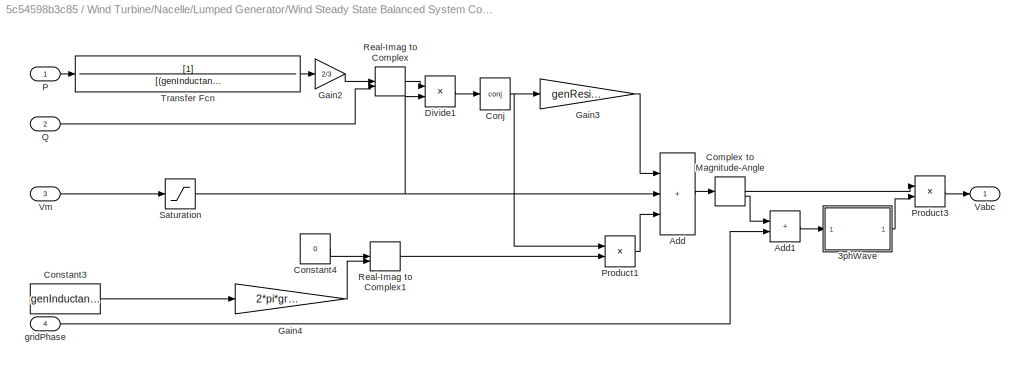
BLOCK [SubSystem] Wind Turbine/Nacelle/Lumped Generator/Wind Steady State Balanced System Control
BLOCK [SubSystem] Wind Turbine/Nacelle/Lumped Generator/Wind Steady State Balanced System Control/3phWave
BLOCK [Bias] Wind Turbine/Nacelle/Lumped Generator/Wind Steady State Balanced System Control/3phWave/Add Constant
  Bias = -120*pi/180
  SaturateOnIntegerOverflow = off
BLOCK [Bias] Wind Turbine/Nacelle/Lumped Generator/Wind Steady State Balanced System Control/3phWave/Add Constant1
  Bias = 120*pi/180
  SaturateOnIntegerOverflow = off
BLOCK [Mux] Wind Turbine/Nacelle/Lumped Generator/Wind Steady State Balanced System Control/3phWave/Mux
  DisplayOption = bar
  Inputs = 3
BLOCK [Trigonometry] Wind Turbine/Nacelle/Lumped Generator/Wind Steady State Balanced System Control/3phWave/Trigonometric Function
BLOCK [Outport] Wind Turbine/Nacelle/Lumped Generator/Wind Steady State Balanced System Control/3phWave/Vabc
BLOCK [Inport] Wind Turbine/Nacelle/Lumped Generator/Wind Steady State Balanced System Control/3phWave/phase
BLOCK [Sum] Wind Turbine/Nacelle/Lumped Generator/Wind Steady State Balanced System Control/Add
  IconShape = rectangular
  Inputs = +++
BLOCK [Sum] Wind Turbine/Nacelle/Lumped Generator/Wind Steady State Balanced System Control/Add1
  IconShape = rectangular
BLOCK [ComplexToMagnitudeAngle] Wind Turbine/Nacelle/Lumped Generator/Wind Steady State Balanced System Control/Complex to Magnitude-Angle
BLOCK [Math] Wind Turbine/Nacelle/Lumped Generator/Wind Steady State Balanced System Control/Conj
  Operator = conj
BLOCK [Constant] Wind Turbine/Nacelle/Lumped Generator/Wind Steady State Balanced System Control/Constant3
  Value = genInductance
BLOCK [Constant] Wind Turbine/Nacelle/Lumped Generator/Wind Steady State Balanced System Control/Constant4
  Value = 0
BLOCK [Product] Wind Turbine/Nacelle/Lumped Generator/Wind Steady State Balanced System Control/Divide1
  Inputs = */
BLOCK [Gain] Wind Turbine/Nacelle/Lumped Generator/Wind Steady State Balanced System Control/Gain2
  Gain = 2/3
BLOCK [Gain] Wind Turbine/Nacelle/Lumped Generator/Wind Steady State Balanced System Control/Gain3
  Gain = genResistor
BLOCK [Gain] Wind Turbine/Nacelle/Lumped Generator/Wind Steady State Balanced System Control/Gain4
  Gain = 2*pi*gridFreq
BLOCK [Inport] Wind Turbine/Nacelle/Lumped Generator/Wind Steady State Balanced System Control/P
BLOCK [Product] Wind Turbine/Nacelle/Lumped Generator/Wind Steady State Balanced System Control/Product1
BLOCK [Product] Wind Turbine/Nacelle/Lumped Generator/Wind Steady State Balanced System Control/Product3
BLOCK [Inport] Wind Turbine/Nacelle/Lumped Generator/Wind Steady State Balanced System Control/Q
  Port = 2
BLOCK [RealImagToComplex] Wind Turbine/Nacelle/Lumped Generator/Wind Steady State Balanced System Control/Real-Imag to Complex
BLOCK [RealImagToComplex] Wind Turbine/Nacelle/Lumped Generator/Wind Steady State Balanced System Control/Real-Imag to Complex1
BLOCK [Saturate] Wind Turbine/Nacelle/Lumped Generator/Wind Steady State Balanced System Control/Saturation
  LowerLimit = 10
  UpperLimit = 10000
BLOCK [TransferFcn] Wind Turbine/Nacelle/Lumped Generator/Wind Steady State Balanced System Control/Transfer Fcn
  Denominator = [(genInductance/genResistor) 1]
BLOCK [Outport] Wind Turbine/Nacelle/Lumped Generator/Wind Steady State Balanced System Control/Vabc
BLOCK [Inport] Wind Turbine/Nacelle/Lumped Generator/Wind Steady State Balanced System Control/Vm
  Port = 3
BLOCK [Inport] Wind Turbine/Nacelle/Lumped Generator/Wind Steady State Balanced System Control/gridPhase
  Port = 4
BLOCK [Inport] Wind Turbine/Nacelle/Lumped Generator/generatorTrip
  NameLocation = top
  Port = 4
BLOCK [Inport] Wind Turbine/Nacelle/Lumped Generator/rotorSpeed
  Port = 2
BLOCK [Reference] Wind Turbine/Nacelle/Mechanical Rotational Reference  REF=fl_lib/Mechanical/Rotational Elements/Mechanical
Rotational Reference
  SourceBlock = fl_lib/Mechanical/Rotational Elements/Mechanical\nRotational Reference
  SourceType = Mechanical\nRotational Reference
BLOCK [PMIOPort] Wind Turbine/Nacelle/R
  Side = Left
BLOCK [Constant] Wind Turbine/Nacelle/Reactive Power
  NameLocation = right
  Value = 0
BLOCK [Terminator] Wind Turbine/Nacelle/Terminator
  NameLocation = left
BLOCK [Inport] Wind Turbine/Nacelle/parkingBrake
  NameLocation = top
BLOCK [Reference] Wind Turbine/PS Terminator  REF=fl_lib/Physical Signals/Sinks/PS Terminator
  NameLocation = left
  SourceBlock = fl_lib/Physical Signals/Sinks/PS Terminator
  SourceType = PS Terminator
BLOCK [Reference] Wind Turbine/PS-Simulink Converter  REF=nesl_utility/PS-Simulink
Converter
  NameLocation = left
  SourceBlock = nesl_utility/PS-Simulink\nConverter
  SourceType = PS-Simulink\nConverter
BLOCK [Reference] Wind Turbine/PS-Simulink Converter1  REF=nesl_utility/PS-Simulink
Converter
  SourceBlock = nesl_utility/PS-Simulink\nConverter
  SourceType = PS-Simulink\nConverter
BLOCK [PMIOPort] Wind Turbine/Pitch
  Port = 2
  Side = Left
BLOCK [Reference] Wind Turbine/Power Sensor (Three-Phase)  REF=ee_lib/Sensors &
Transducers/Power Sensor
(Three-Phase)
  NameLocation = top
  SourceBlock = ee_lib/Sensors &\nTransducers/Power Sensor\n(Three-Phase)
  SourceType = Power Sensor\n(Three-Phase)
BLOCK [Reference] Wind Turbine/Rotor Hub  REF=sdl_lib/Engines & Motors/Wind Turbine
  SourceBlock = sdl_lib/Engines & Motors/Wind Turbine
  SourceType = Wind Turbine
BLOCK [SubSystem] Wind Turbine/Rotor Hub Velocity Sensor
  NameLocation = left
BLOCK [Goto] Wind Turbine/Rotor Hub Velocity Sensor/Goto4
  GotoTag = wTurbine
  TagVisibility = global
BLOCK [Reference] Wind Turbine/Rotor Hub Velocity Sensor/Ideal Rotational Motion Sensor  REF=fl_lib/Mechanical/Mechanical Sensors/Ideal Rotational
Motion Sensor
  SourceBlock = fl_lib/Mechanical/Mechanical Sensors/Ideal Rotational\nMotion Sensor
  SourceType = Ideal Rotational\nMotion Sensor
BLOCK [TransferFcn] Wind Turbine/Rotor Hub Velocity Sensor/Measurement Filter
  Denominator = [0.001 1]
BLOCK [Reference] Wind Turbine/Rotor Hub Velocity Sensor/Mechanical Rotational Reference2  REF=fl_lib/Mechanical/Rotational Elements/Mechanical
Rotational Reference
  NameLocation = right
  SourceBlock = fl_lib/Mechanical/Rotational Elements/Mechanical\nRotational Reference
  SourceType = Mechanical\nRotational Reference
BLOCK [Reference] Wind Turbine/Rotor Hub Velocity Sensor/PS-Simulink Converter  REF=nesl_utility/PS-Simulink
Converter
  SourceBlock = nesl_utility/PS-Simulink\nConverter
  SourceType = PS-Simulink\nConverter
BLOCK [PMIOPort] Wind Turbine/Rotor Hub Velocity Sensor/R
  Side = Left
BLOCK [Outport] Wind Turbine/Rotor Hub Velocity Sensor/wTurbine
BLOCK [Scope] Wind Turbine/Scope
  Floating = off
  NumInputPorts = 1
  ScopeSpecificationString = Simulink.scopes.TimeScopeBlockCfg('CurrentConfiguration', extmgr.ConfigurationSet(extmgr.Configuration('Core','General UI',true),extmgr.Configuration('Core','Source UI',true),extmgr.Configuration('Sources','WiredSimulink',true,'DataLoggingVariableName','ScopeData1'),extmgr.Configuration('Visuals','Time Domain',true,'SerializedDisplays',{struct('MinYLimReal','-0.28306','MaxYLimReal','2.54757','YLab...<+1830ch>
BLOCK [Terminator] Wind Turbine/Terminator
  NameLocation = left
BLOCK [PMIOPort] Wind Turbine/vWind
  Side = Left
ANNOTATION (root): 1. Open initialization script to explore parameters 2. Set wind profile 1 , 2 , or 3 and Run the model. 3. Plot wind turbine simulation results ( open script ) 4. Explore simulation results using Simscape Results Explorer 5. Learn more about this example
ANNOTATION (root): <copyright redacted>
ANNOTATION (root): MPPT, Derating with Limiter Control
ANNOTATION (root): Supervisory Control
ANNOTATION (root): Turbine Pitch Controller
ANNOTATION (root): Turbine coupled with Grid and Transformer
ANNOTATION (root): Wind Turbine
ANNOTATION Pitch Controller/Turbine State 0 : Park Brake and Turbine State 3 : Pitch Brake/Turbine State 0 an 3: Turbine State 0 & 3: Park & Pitch Brake
ANNOTATION Pitch Controller/Turbine State 1 : Startup Condition/Turbine State 1: Turbine State 1: Startup
ANNOTATION Pitch Controller/Turbine State 2 : Power Generation Condition/Turbine State 2: Turbine State 2 : Generating Power
LINE From10:1 -> Mux:2
LINE From11:1 -> Mux:3
LINE From12:1 -> Mux:4
LINE From13:1 -> Results:2
LINE From14:1 -> Results:3
LINE From15:1 -> Results:4
LINE From1:1 -> Power Controller:1
LINE From2:1 -> Pitch Controller:2
LINE From3:1 -> Pitch Controller:3
LINE From4:1 -> Turbine State Machine:1
LINE From5:1 -> Turbine State Machine:2
LINE From6:1 -> Pitch Controller:1
LINE From7:1 -> Simulink-PS Converter1:1
LINE From8:1 -> Mux:1
LINE From9:1 -> Power Controller:3
LINE From:1 -> Power Controller:2
LINE Measurement Filter:1 -> Goto4:1
LINE Mux:1 -> Results:1
NET Pitch Controller/Merge:1 -> Pitch Controller/Pitch Change Rate Limiter:1, Pitch Controller/Transfer Fcn1:1
LINE Pitch Controller/Pitch Change Rate Limiter:1 -> Pitch Controller/pitchAngle:1
LINE Pitch Controller/Transfer Fcn1:1 -> Pitch Controller/Turbine State 0 : Park Brake and Turbine State 3 : Pitch Brake:2
LINE Pitch Controller/Turbine State 0 : Park Brake and Turbine State 3 : Pitch Brake/Compare To Constant1:1 -> Pitch Controller/Turbine State 0 : Park Brake and Turbine State 3 : Pitch Brake/OR:2
LINE Pitch Controller/Turbine State 0 : Park Brake and Turbine State 3 : Pitch Brake/Compare To Constant:1 -> Pitch Controller/Turbine State 0 : Park Brake and Turbine State 3 : Pitch Brake/OR:1
LINE Pitch Controller/Turbine State 0 : Park Brake and Turbine State 3 : Pitch Brake/OR:1 -> Pitch Controller/Turbine State 0 : Park Brake and Turbine State 3 : Pitch Brake/Turbine State 0 an 3:enable
LINE Pitch Controller/Turbine State 0 : Park Brake and Turbine State 3 : Pitch Brake/Turbine State 0 an 3/Constant1:1 -> Pitch Controller/Turbine State 0 : Park Brake and Turbine State 3 : Pitch Brake/Turbine State 0 an 3/Integrator:1
LINE Pitch Controller/Turbine State 0 : Park Brake and Turbine State 3 : Pitch Brake/Turbine State 0 an 3/Constant:1 -> Pitch Controller/Turbine State 0 : Park Brake and Turbine State 3 : Pitch Brake/Turbine State 0 an 3/Controller:1
LINE Pitch Controller/Turbine State 0 : Park Brake and Turbine State 3 : Pitch Brake/Turbine State 0 an 3/Controller:1 -> Pitch Controller/Turbine State 0 : Park Brake and Turbine State 3 : Pitch Brake/Turbine State 0 an 3/Switch:1
LINE Pitch Controller/Turbine State 0 : Park Brake and Turbine State 3 : Pitch Brake/Turbine State 0 an 3/Integrator:1 -> Pitch Controller/Turbine State 0 : Park Brake and Turbine State 3 : Pitch Brake/Turbine State 0 an 3/Switch:2
LINE Pitch Controller/Turbine State 0 : Park Brake and Turbine State 3 : Pitch Brake/Turbine State 0 an 3/Switch:1 -> Pitch Controller/Turbine State 0 : Park Brake and Turbine State 3 : Pitch Brake/Turbine State 0 an 3/pitchAngle:1
LINE Pitch Controller/Turbine State 0 : Park Brake and Turbine State 3 : Pitch Brake/Turbine State 0 an 3/pitchState:1 -> Pitch Controller/Turbine State 0 : Park Brake and Turbine State 3 : Pitch Brake/Turbine State 0 an 3/Switch:3
LINE Pitch Controller/Turbine State 0 : Park Brake and Turbine State 3 : Pitch Brake/Turbine State 0 an 3:1 -> Pitch Controller/Turbine State 0 : Park Brake and Turbine State 3 : Pitch Brake/pitchAngle:1
LINE Pitch Controller/Turbine State 0 : Park Brake and Turbine State 3 : Pitch Brake/pitchState:1 -> Pitch Controller/Turbine State 0 : Park Brake and Turbine State 3 : Pitch Brake/Turbine State 0 an 3:1
NET Pitch Controller/Turbine State 0 : Park Brake and Turbine State 3 : Pitch Brake/turbineState:1 -> Pitch Controller/Turbine State 0 : Park Brake and Turbine State 3 : Pitch Brake/Compare To Constant1:1, Pitch Controller/Turbine State 0 : Park Brake and Turbine State 3 : Pitch Brake/Compare To Constant:1
LINE Pitch Controller/Turbine State 0 : Park Brake and Turbine State 3 : Pitch Brake:1 -> Pitch Controller/Merge:1
LINE Pitch Controller/Turbine State 1 : Startup Condition/Compare To Constant:1 -> Pitch Controller/Turbine State 1 : Startup Condition/Turbine State 1:enable
LINE Pitch Controller/Turbine State 1 : Startup Condition/Turbine State 1/Constant:1 -> Pitch Controller/Turbine State 1 : Startup Condition/Turbine State 1/Transfer Fcn:1
LINE Pitch Controller/Turbine State 1 : Startup Condition/Turbine State 1/Saturation:1 -> Pitch Controller/Turbine State 1 : Startup Condition/Turbine State 1/pitchAngle:1
LINE Pitch Controller/Turbine State 1 : Startup Condition/Turbine State 1/Transfer Fcn:1 -> Pitch Controller/Turbine State 1 : Startup Condition/Turbine State 1/Saturation:1
LINE Pitch Controller/Turbine State 1 : Startup Condition/Turbine State 1:1 -> Pitch Controller/Turbine State 1 : Startup Condition/pitchAngle:1
LINE Pitch Controller/Turbine State 1 : Startup Condition/turbineState:1 -> Pitch Controller/Turbine State 1 : Startup Condition/Compare To Constant:1
LINE Pitch Controller/Turbine State 1 : Startup Condition:1 -> Pitch Controller/Merge:2
LINE Pitch Controller/Turbine State 2 : Power Generation Condition/Compare To Constant:1 -> Pitch Controller/Turbine State 2 : Power Generation Condition/Turbine State 2:enable
LINE Pitch Controller/Turbine State 2 : Power Generation Condition/Turbine State 2/Add:1 -> Pitch Controller/Turbine State 2 : Power Generation Condition/Turbine State 2/Transfer Fcn:1
LINE Pitch Controller/Turbine State 2 : Power Generation Condition/Turbine State 2/Constant1:1 -> Pitch Controller/Turbine State 2 : Power Generation Condition/Turbine State 2/Add:1
LINE Pitch Controller/Turbine State 2 : Power Generation Condition/Turbine State 2/Constant:1 -> Pitch Controller/Turbine State 2 : Power Generation Condition/Turbine State 2/Sum:2
LINE Pitch Controller/Turbine State 2 : Power Generation Condition/Turbine State 2/Derating Pitch:1 -> Pitch Controller/Turbine State 2 : Power Generation Condition/Turbine State 2/Add:4
LINE Pitch Controller/Turbine State 2 : Power Generation Condition/Turbine State 2/Gain1:1 -> Pitch Controller/Turbine State 2 : Power Generation Condition/Turbine State 2/Integrator:1
LINE Pitch Controller/Turbine State 2 : Power Generation Condition/Turbine State 2/Gain:1 -> Pitch Controller/Turbine State 2 : Power Generation Condition/Turbine State 2/Add:2
LINE Pitch Controller/Turbine State 2 : Power Generation Condition/Turbine State 2/Integrator:1 -> Pitch Controller/Turbine State 2 : Power Generation Condition/Turbine State 2/Add:3
LINE Pitch Controller/Turbine State 2 : Power Generation Condition/Turbine State 2/Saturation1:1 -> Pitch Controller/Turbine State 2 : Power Generation Condition/Turbine State 2/pitchAngle:1
NET Pitch Controller/Turbine State 2 : Power Generation Condition/Turbine State 2/Saturation:1 -> Pitch Controller/Turbine State 2 : Power Generation Condition/Turbine State 2/Gain1:1, Pitch Controller/Turbine State 2 : Power Generation Condition/Turbine State 2/Gain:1
LINE Pitch Controller/Turbine State 2 : Power Generation Condition/Turbine State 2/Sum:1 -> Pitch Controller/Turbine State 2 : Power Generation Condition/Turbine State 2/Saturation:1
LINE Pitch Controller/Turbine State 2 : Power Generation Condition/Turbine State 2/Transfer Fcn:1 -> Pitch Controller/Turbine State 2 : Power Generation Condition/Turbine State 2/Saturation1:1
LINE Pitch Controller/Turbine State 2 : Power Generation Condition/Turbine State 2/generatorPower:1 -> Pitch Controller/Turbine State 2 : Power Generation Condition/Turbine State 2/Sum:1
LINE Pitch Controller/Turbine State 2 : Power Generation Condition/Turbine State 2/windSpeed:1 -> Pitch Controller/Turbine State 2 : Power Generation Condition/Turbine State 2/Derating Pitch:1
LINE Pitch Controller/Turbine State 2 : Power Generation Condition/Turbine State 2:1 -> Pitch Controller/Turbine State 2 : Power Generation Condition/pitchAngle:1
LINE Pitch Controller/Turbine State 2 : Power Generation Condition/generatorPower:1 -> Pitch Controller/Turbine State 2 : Power Generation Condition/Turbine State 2:1
LINE Pitch Controller/Turbine State 2 : Power Generation Condition/turbineState:1 -> Pitch Controller/Turbine State 2 : Power Generation Condition/Compare To Constant:1
LINE Pitch Controller/Turbine State 2 : Power Generation Condition/windSpeed:1 -> Pitch Controller/Turbine State 2 : Power Generation Condition/Turbine State 2:2
LINE Pitch Controller/Turbine State 2 : Power Generation Condition:1 -> Pitch Controller/Merge:3
LINE Pitch Controller/generatorPower:1 -> Pitch Controller/Turbine State 2 : Power Generation Condition:1
NET Pitch Controller/turbineState:1 -> Pitch Controller/Turbine State 0 : Park Brake and Turbine State 3 : Pitch Brake:1, Pitch Controller/Turbine State 1 : Startup Condition:1, Pitch Controller/Turbine State 2 : Power Generation Condition:3
LINE Pitch Controller/windSpeed:1 -> Pitch Controller/Turbine State 2 : Power Generation Condition:2
LINE Pitch Controller:1 -> Goto6:1
LINE Power Controller/Derating Control/Constant1:1 -> Power Controller/Derating Control/wReference:1
LINE Power Controller/Derating Control/Constant:1 -> Power Controller/Derating Control/Gain:1
LINE Power Controller/Derating Control/Gain:1 -> Power Controller/Derating Control/MW to W:1
LINE Power Controller/Derating Control/MW to W:1 -> Power Controller/Derating Control/activePowerDemand:1
LINE Power Controller/Derating Control:1 -> Power Controller/Limiter Function Power Demand:3
LINE Power Controller/Derating Control:2 -> Power Controller/Limiter Function Reference Speed:3
LINE Power Controller/Greater than:1 -> Power Controller/Derating Control:enable
LINE Power Controller/Less than or equal to:1 -> Power Controller/MPPT Control:enable
LINE Power Controller/Limiter Function Power Demand/Constant1:1 -> Power Controller/Limiter Function Power Demand/Switch1:1
LINE Power Controller/Limiter Function Power Demand/Constant2:1 -> Power Controller/Limiter Function Power Demand/Switch:1
LINE Power Controller/Limiter Function Power Demand/Constant3:1 -> Power Controller/Limiter Function Power Demand/Switch1:3
LINE Power Controller/Limiter Function Power Demand/Gain:1 -> Power Controller/Limiter Function Power Demand/Product:1
LINE Power Controller/Limiter Function Power Demand/Merge:1 -> Power Controller/Limiter Function Power Demand/Switch:3
LINE Power Controller/Limiter Function Power Demand/Product:1 -> Power Controller/Limiter Function Power Demand/activePowerDemand:1
LINE Power Controller/Limiter Function Power Demand/Switch1:1 -> Power Controller/Limiter Function Power Demand/Transfer Fcn:1
LINE Power Controller/Limiter Function Power Demand/Switch:1 -> Power Controller/Limiter Function Power Demand/Gain:1
LINE Power Controller/Limiter Function Power Demand/Transfer Fcn:1 -> Power Controller/Limiter Function Power Demand/Product:2
LINE Power Controller/Limiter Function Power Demand/activePowerDemandDerating:1 -> Power Controller/Limiter Function Power Demand/Merge:2
LINE Power Controller/Limiter Function Power Demand/activePowerDemandMPPT:1 -> Power Controller/Limiter Function Power Demand/Merge:1
LINE Power Controller/Limiter Function Power Demand/generatorTrip:1 -> Power Controller/Limiter Function Power Demand/Switch:2
LINE Power Controller/Limiter Function Power Demand/pitchBrake:1 -> Power Controller/Limiter Function Power Demand/Switch1:2
LINE Power Controller/Limiter Function Power Demand:1 -> Power Controller/activePowerDemand:1
LINE Power Controller/Limiter Function Reference Speed/Constant1:1 -> Power Controller/Limiter Function Reference Speed/Switch1:1
LINE Power Controller/Limiter Function Reference Speed/Constant:1 -> Power Controller/Limiter Function Reference Speed/Switch1:3
LINE Power Controller/Limiter Function Reference Speed/Merge1:1 -> Power Controller/Limiter Function Reference Speed/Product:2
LINE Power Controller/Limiter Function Reference Speed/Product:1 -> Power Controller/Limiter Function Reference Speed/wReference:1
LINE Power Controller/Limiter Function Reference Speed/Switch1:1 -> Power Controller/Limiter Function Reference Speed/Transfer Fcn:1
LINE Power Controller/Limiter Function Reference Speed/Transfer Fcn:1 -> Power Controller/Limiter Function Reference Speed/Product:1
LINE Power Controller/Limiter Function Reference Speed/pitchBrake:1 -> Power Controller/Limiter Function Reference Speed/Switch1:2
LINE Power Controller/Limiter Function Reference Speed/wReferenceDerating:1 -> Power Controller/Limiter Function Reference Speed/Merge1:2
LINE Power Controller/Limiter Function Reference Speed/wReferenceMPPT:1 -> Power Controller/Limiter Function Reference Speed/Merge1:1
LINE Power Controller/Limiter Function Reference Speed:1 -> Power Controller/wReference:1
LINE Power Controller/MPPT Control/MW to W:1 -> Power Controller/MPPT Control/activePowerDemand:1
LINE Power Controller/MPPT Control/mpptActivePowerDemand:1 -> Power Controller/MPPT Control/MW to W:1
LINE Power Controller/MPPT Control/mpptOmega:1 -> Power Controller/MPPT Control/wReference:1
NET Power Controller/MPPT Control/windSpeed:1 -> Power Controller/MPPT Control/mpptActivePowerDemand:1, Power Controller/MPPT Control/mpptOmega:1
LINE Power Controller/MPPT Control:1 -> Power Controller/Limiter Function Reference Speed:1
LINE Power Controller/MPPT Control:2 -> Power Controller/Limiter Function Power Demand:1
LINE Power Controller/generatorTrip:1 -> Power Controller/Limiter Function Power Demand:2
NET Power Controller/pitchBrake:1 -> Power Controller/Limiter Function Power Demand:4, Power Controller/Limiter Function Reference Speed:2
NET Power Controller/windSpeed:1 -> Power Controller/Greater than:1, Power Controller/Less than or equal to:1, Power Controller/MPPT Control:1
LINE Power Controller:1 -> Goto7:1
LINE Power Controller:2 -> Goto5:1
LINE Turbine State Machine:1 -> Goto:1
LINE Turbine State Machine:2 -> Goto1:1
LINE Turbine State Machine:3 -> Goto2:1
LINE Turbine State Machine:4 -> Goto3:1
LINE Wind Profile/Wind Profile 1/Ramp:1 -> Wind Profile/Wind Profile 1/Saturation:1
LINE Wind Profile/Wind Profile 1/Saturation:1 -> Wind Profile/Wind Profile 1/vWind:1
LINE Wind Profile/Wind Profile 2/Add:1 -> Wind Profile/Wind Profile 2/vWind:1
LINE Wind Profile/Wind Profile 2/Mux:1 -> Wind Profile/Wind Profile 2/Add:1
LINE Wind Profile/Wind Profile 2/Ramp1:1 -> Wind Profile/Wind Profile 2/Saturation1:1
LINE Wind Profile/Wind Profile 2/Ramp2:1 -> Wind Profile/Wind Profile 2/Saturation2:1
LINE Wind Profile/Wind Profile 2/Ramp:1 -> Wind Profile/Wind Profile 2/Saturation:1
LINE Wind Profile/Wind Profile 2/Saturation1:1 -> Wind Profile/Wind Profile 2/Mux:2
LINE Wind Profile/Wind Profile 2/Saturation2:1 -> Wind Profile/Wind Profile 2/Mux:3
LINE Wind Profile/Wind Profile 2/Saturation:1 -> Wind Profile/Wind Profile 2/Mux:1
LINE Wind Profile/Wind Profile 3/Ramp:1 -> Wind Profile/Wind Profile 3/Saturation:1
LINE Wind Profile/Wind Profile 3/Saturation:1 -> Wind Profile/Wind Profile 3/vWind:1
NET Wind Profile:1 -> Measurement Filter:1, Simulink-PS Converter:1
LINE Wind Turbine/From:1 -> Wind Turbine/Nacelle:1
LINE Wind Turbine/Measurement Filter:1 -> Wind Turbine/Goto5:1
LINE Wind Turbine/Nacelle/Brakes/Engagement Pressure:1 -> Wind Turbine/Nacelle/Brakes/Simulink-PS Converter:1
LINE Wind Turbine/Nacelle/Brakes/parkingBrake:1 -> Wind Turbine/Nacelle/Brakes/Engagement Pressure:1
LINE Wind Turbine/Nacelle/From1:1 -> Wind Turbine/Nacelle/Lumped Generator:2
LINE Wind Turbine/Nacelle/From2:1 -> Wind Turbine/Nacelle/Lumped Generator:1
LINE Wind Turbine/Nacelle/From:1 -> Wind Turbine/Nacelle/Lumped Generator:4
LINE Wind Turbine/Nacelle/Generator Velocity Sensor /Measurement Filter:1 -> Wind Turbine/Nacelle/Generator Velocity Sensor /wGen:1
LINE Wind Turbine/Nacelle/Generator Velocity Sensor /PS-Simulink Converter:1 -> Wind Turbine/Nacelle/Generator Velocity Sensor /Measurement Filter:1
LINE Wind Turbine/Nacelle/Generator Velocity Sensor :1 -> Wind Turbine/Nacelle/Terminator:1
LINE Wind Turbine/Nacelle/Lumped Generator/Electrical Generator Power:1 -> Wind Turbine/Nacelle/Lumped Generator/Wind Steady State Balanced System Control:1
LINE Wind Turbine/Nacelle/Lumped Generator/Electrical Torque Demand/Abs:1 -> Wind Turbine/Nacelle/Lumped Generator/Electrical Torque Demand/Switch:3
LINE Wind Turbine/Nacelle/Lumped Generator/Electrical Torque Demand/Divide1:1 -> Wind Turbine/Nacelle/Lumped Generator/Electrical Torque Demand/Abs:1
LINE Wind Turbine/Nacelle/Lumped Generator/Electrical Torque Demand/Divide:1 -> Wind Turbine/Nacelle/Lumped Generator/Electrical Torque Demand/Transfer Fcn:1
LINE Wind Turbine/Nacelle/Lumped Generator/Electrical Torque Demand/P:1 -> Wind Turbine/Nacelle/Lumped Generator/Electrical Torque Demand/Transfer Fcn1:1
NET Wind Turbine/Nacelle/Lumped Generator/Electrical Torque Demand/Saturation:1 -> Wind Turbine/Nacelle/Lumped Generator/Electrical Torque Demand/Divide1:2, Wind Turbine/Nacelle/Lumped Generator/Electrical Torque Demand/Divide:2
LINE Wind Turbine/Nacelle/Lumped Generator/Electrical Torque Demand/Switch:1 -> Wind Turbine/Nacelle/Lumped Generator/Electrical Torque Demand/Damping:1
LINE Wind Turbine/Nacelle/Lumped Generator/Electrical Torque Demand/Transfer Fcn1:1 -> Wind Turbine/Nacelle/Lumped Generator/Electrical Torque Demand/Divide:1
LINE Wind Turbine/Nacelle/Lumped Generator/Electrical Torque Demand/Transfer Fcn2:1 -> Wind Turbine/Nacelle/Lumped Generator/Electrical Torque Demand/Saturation:1
LINE Wind Turbine/Nacelle/Lumped Generator/Electrical Torque Demand/Transfer Fcn:1 -> Wind Turbine/Nacelle/Lumped Generator/Electrical Torque Demand/Divide1:1
LINE Wind Turbine/Nacelle/Lumped Generator/Electrical Torque Demand/W:1 -> Wind Turbine/Nacelle/Lumped Generator/Electrical Torque Demand/Transfer Fcn2:1
LINE Wind Turbine/Nacelle/Lumped Generator/Electrical Torque Demand/generatorDampingDuringTrip:1 -> Wind Turbine/Nacelle/Lumped Generator/Electrical Torque Demand/Switch:1
LINE Wind Turbine/Nacelle/Lumped Generator/Electrical Torque Demand/generatorTrip:1 -> Wind Turbine/Nacelle/Lumped Generator/Electrical Torque Demand/Switch:2
LINE Wind Turbine/Nacelle/Lumped Generator/Electrical Torque Demand:1 -> Wind Turbine/Nacelle/Lumped Generator/Simulink-PS Converter:1
LINE Wind Turbine/Nacelle/Lumped Generator/Gain1:1 -> Wind Turbine/Nacelle/Lumped Generator/Goto:1
LINE Wind Turbine/Nacelle/Lumped Generator/Gain2:1 -> Wind Turbine/Nacelle/Lumped Generator/Electrical Torque Demand:2
LINE Wind Turbine/Nacelle/Lumped Generator/Gain:1 -> Wind Turbine/Nacelle/Lumped Generator/Electrical Torque Demand:1
LINE Wind Turbine/Nacelle/Lumped Generator/P:1 -> Wind Turbine/Nacelle/Lumped Generator/Gain:1
LINE Wind Turbine/Nacelle/Lumped Generator/PLL/Demux1:1 -> Wind Turbine/Nacelle/Lumped Generator/PLL/Sensor dynamics1:1
LINE Wind Turbine/Nacelle/Lumped Generator/PLL/Demux1:2 -> Wind Turbine/Nacelle/Lumped Generator/PLL/Terminator:1
LINE Wind Turbine/Nacelle/Lumped Generator/PLL/Demux1:3 -> Wind Turbine/Nacelle/Lumped Generator/PLL/Terminator1:1
LINE Wind Turbine/Nacelle/Lumped Generator/PLL/PLL Logic/Compare To Zero:1 -> Wind Turbine/Nacelle/Lumped Generator/PLL/PLL Logic/Integrator:2
LINE Wind Turbine/Nacelle/Lumped Generator/PLL/PLL Logic/Constant1:1 -> Wind Turbine/Nacelle/Lumped Generator/PLL/PLL Logic/Integrator:3
LINE Wind Turbine/Nacelle/Lumped Generator/PLL/PLL Logic/Constant:1 -> Wind Turbine/Nacelle/Lumped Generator/PLL/PLL Logic/Integrator:1
LINE Wind Turbine/Nacelle/Lumped Generator/PLL/PLL Logic/Gain1:1 -> Wind Turbine/Nacelle/Lumped Generator/PLL/PLL Logic/phase:1
LINE Wind Turbine/Nacelle/Lumped Generator/PLL/PLL Logic/Gain:1 -> Wind Turbine/Nacelle/Lumped Generator/PLL/PLL Logic/Sensor dynamics2:1
LINE Wind Turbine/Nacelle/Lumped Generator/PLL/PLL Logic/IC:1 -> Wind Turbine/Nacelle/Lumped Generator/PLL/PLL Logic/RMS Measurement:1
LINE Wind Turbine/Nacelle/Lumped Generator/PLL/PLL Logic/Integrator:1 -> Wind Turbine/Nacelle/Lumped Generator/PLL/PLL Logic/Gain1:1
LINE Wind Turbine/Nacelle/Lumped Generator/PLL/PLL Logic/RMS Measurement:1 -> Wind Turbine/Nacelle/Lumped Generator/PLL/PLL Logic/Gain:1
LINE Wind Turbine/Nacelle/Lumped Generator/PLL/PLL Logic/Sensor dynamics2:1 -> Wind Turbine/Nacelle/Lumped Generator/PLL/PLL Logic/Vm:1
NET Wind Turbine/Nacelle/Lumped Generator/PLL/PLL Logic/u:1 -> Wind Turbine/Nacelle/Lumped Generator/PLL/PLL Logic/Compare To Zero:1, Wind Turbine/Nacelle/Lumped Generator/PLL/PLL Logic/IC:1
LINE Wind Turbine/Nacelle/Lumped Generator/PLL/PLL Logic:1 -> Wind Turbine/Nacelle/Lumped Generator/PLL/phase:1
LINE Wind Turbine/Nacelle/Lumped Generator/PLL/PLL Logic:2 -> Wind Turbine/Nacelle/Lumped Generator/PLL/Vm:1
LINE Wind Turbine/Nacelle/Lumped Generator/PLL/PS-Simulink Converter1:1 -> Wind Turbine/Nacelle/Lumped Generator/PLL/Demux1:1
LINE Wind Turbine/Nacelle/Lumped Generator/PLL/Sensor dynamics1:1 -> Wind Turbine/Nacelle/Lumped Generator/PLL/PLL Logic:1
LINE Wind Turbine/Nacelle/Lumped Generator/PLL:1 -> Wind Turbine/Nacelle/Lumped Generator/Wind Steady State Balanced System Control:4
LINE Wind Turbine/Nacelle/Lumped Generator/PLL:2 -> Wind Turbine/Nacelle/Lumped Generator/Wind Steady State Balanced System Control:3
LINE Wind Turbine/Nacelle/Lumped Generator/PS-Simulink Converter:1 -> Wind Turbine/Nacelle/Lumped Generator/Gain1:1
LINE Wind Turbine/Nacelle/Lumped Generator/Q:1 -> Wind Turbine/Nacelle/Lumped Generator/Wind Steady State Balanced System Control:2
LINE Wind Turbine/Nacelle/Lumped Generator/Wind Steady State Balanced System Control/3phWave/Add Constant1:1 -> Wind Turbine/Nacelle/Lumped Generator/Wind Steady State Balanced System Control/3phWave/Mux:3
LINE Wind Turbine/Nacelle/Lumped Generator/Wind Steady State Balanced System Control/3phWave/Add Constant:1 -> Wind Turbine/Nacelle/Lumped Generator/Wind Steady State Balanced System Control/3phWave/Mux:2
LINE Wind Turbine/Nacelle/Lumped Generator/Wind Steady State Balanced System Control/3phWave/Mux:1 -> Wind Turbine/Nacelle/Lumped Generator/Wind Steady State Balanced System Control/3phWave/Trigonometric Function:1
LINE Wind Turbine/Nacelle/Lumped Generator/Wind Steady State Balanced System Control/3phWave/Trigonometric Function:1 -> Wind Turbine/Nacelle/Lumped Generator/Wind Steady State Balanced System Control/3phWave/Vabc:1
NET Wind Turbine/Nacelle/Lumped Generator/Wind Steady State Balanced System Control/3phWave/phase:1 -> Wind Turbine/Nacelle/Lumped Generator/Wind Steady State Balanced System Control/3phWave/Add Constant1:1, Wind Turbine/Nacelle/Lumped Generator/Wind Steady State Balanced System Control/3phWave/Add Constant:1, Wind Turbine/Nacelle/Lumped Generator/Wind Steady State Balanced System Control/3phWave/Mux:1
LINE Wind Turbine/Nacelle/Lumped Generator/Wind Steady State Balanced System Control/3phWave:1 -> Wind Turbine/Nacelle/Lumped Generator/Wind Steady State Balanced System Control/Product3:2
LINE Wind Turbine/Nacelle/Lumped Generator/Wind Steady State Balanced System Control/Add1:1 -> Wind Turbine/Nacelle/Lumped Generator/Wind Steady State Balanced System Control/3phWave:1
LINE Wind Turbine/Nacelle/Lumped Generator/Wind Steady State Balanced System Control/Add:1 -> Wind Turbine/Nacelle/Lumped Generator/Wind Steady State Balanced System Control/Complex to Magnitude-Angle:1
LINE Wind Turbine/Nacelle/Lumped Generator/Wind Steady State Balanced System Control/Complex to Magnitude-Angle:1 -> Wind Turbine/Nacelle/Lumped Generator/Wind Steady State Balanced System Control/Product3:1
LINE Wind Turbine/Nacelle/Lumped Generator/Wind Steady State Balanced System Control/Complex to Magnitude-Angle:2 -> Wind Turbine/Nacelle/Lumped Generator/Wind Steady State Balanced System Control/Add1:1
NET Wind Turbine/Nacelle/Lumped Generator/Wind Steady State Balanced System Control/Conj:1 -> Wind Turbine/Nacelle/Lumped Generator/Wind Steady State Balanced System Control/Gain3:1, Wind Turbine/Nacelle/Lumped Generator/Wind Steady State Balanced System Control/Product1:1
LINE Wind Turbine/Nacelle/Lumped Generator/Wind Steady State Balanced System Control/Constant3:1 -> Wind Turbine/Nacelle/Lumped Generator/Wind Steady State Balanced System Control/Gain4:1
LINE Wind Turbine/Nacelle/Lumped Generator/Wind Steady State Balanced System Control/Constant4:1 -> Wind Turbine/Nacelle/Lumped Generator/Wind Steady State Balanced System Control/Real-Imag to Complex1:1
LINE Wind Turbine/Nacelle/Lumped Generator/Wind Steady State Balanced System Control/Divide1:1 -> Wind Turbine/Nacelle/Lumped Generator/Wind Steady State Balanced System Control/Conj:1
LINE Wind Turbine/Nacelle/Lumped Generator/Wind Steady State Balanced System Control/Gain2:1 -> Wind Turbine/Nacelle/Lumped Generator/Wind Steady State Balanced System Control/Real-Imag to Complex:1
LINE Wind Turbine/Nacelle/Lumped Generator/Wind Steady State Balanced System Control/Gain3:1 -> Wind Turbine/Nacelle/Lumped Generator/Wind Steady State Balanced System Control/Add:1
LINE Wind Turbine/Nacelle/Lumped Generator/Wind Steady State Balanced System Control/Gain4:1 -> Wind Turbine/Nacelle/Lumped Generator/Wind Steady State Balanced System Control/Real-Imag to Complex1:2
LINE Wind Turbine/Nacelle/Lumped Generator/Wind Steady State Balanced System Control/P:1 -> Wind Turbine/Nacelle/Lumped Generator/Wind Steady State Balanced System Control/Transfer Fcn:1
LINE Wind Turbine/Nacelle/Lumped Generator/Wind Steady State Balanced System Control/Product1:1 -> Wind Turbine/Nacelle/Lumped Generator/Wind Steady State Balanced System Control/Add:3
LINE Wind Turbine/Nacelle/Lumped Generator/Wind Steady State Balanced System Control/Product3:1 -> Wind Turbine/Nacelle/Lumped Generator/Wind Steady State Balanced System Control/Vabc:1
LINE Wind Turbine/Nacelle/Lumped Generator/Wind Steady State Balanced System Control/Q:1 -> Wind Turbine/Nacelle/Lumped Generator/Wind Steady State Balanced System Control/Real-Imag to Complex:2
LINE Wind Turbine/Nacelle/Lumped Generator/Wind Steady State Balanced System Control/Real-Imag to Complex1:1 -> Wind Turbine/Nacelle/Lumped Generator/Wind Steady State Balanced System Control/Product1:2
LINE Wind Turbine/Nacelle/Lumped Generator/Wind Steady State Balanced System Control/Real-Imag to Complex:1 -> Wind Turbine/Nacelle/Lumped Generator/Wind Steady State Balanced System Control/Divide1:1
NET Wind Turbine/Nacelle/Lumped Generator/Wind Steady State Balanced System Control/Saturation:1 -> Wind Turbine/Nacelle/Lumped Generator/Wind Steady State Balanced System Control/Add:2, Wind Turbine/Nacelle/Lumped Generator/Wind Steady State Balanced System Control/Divide1:2
LINE Wind Turbine/Nacelle/Lumped Generator/Wind Steady State Balanced System Control/Transfer Fcn:1 -> Wind Turbine/Nacelle/Lumped Generator/Wind Steady State Balanced System Control/Gain2:1
LINE Wind Turbine/Nacelle/Lumped Generator/Wind Steady State Balanced System Control/Vm:1 -> Wind Turbine/Nacelle/Lumped Generator/Wind Steady State Balanced System Control/Saturation:1
LINE Wind Turbine/Nacelle/Lumped Generator/Wind Steady State Balanced System Control/gridPhase:1 -> Wind Turbine/Nacelle/Lumped Generator/Wind Steady State Balanced System Control/Add1:2
LINE Wind Turbine/Nacelle/Lumped Generator/Wind Steady State Balanced System Control:1 -> Wind Turbine/Nacelle/Lumped Generator/Simulink-PS Converter2:1
NET Wind Turbine/Nacelle/Lumped Generator/generatorTrip:1 -> Wind Turbine/Nacelle/Lumped Generator/Electrical Torque Demand:3, Wind Turbine/Nacelle/Lumped Generator/Simulink-PS Converter1:1
LINE Wind Turbine/Nacelle/Lumped Generator/rotorSpeed:1 -> Wind Turbine/Nacelle/Lumped Generator/Gain2:1
LINE Wind Turbine/Nacelle/Reactive Power:1 -> Wind Turbine/Nacelle/Lumped Generator:3
LINE Wind Turbine/Nacelle/parkingBrake:1 -> Wind Turbine/Nacelle/Brakes:1
LINE Wind Turbine/PS-Simulink Converter1:1 -> Wind Turbine/Scope:1
LINE Wind Turbine/PS-Simulink Converter:1 -> Wind Turbine/Measurement Filter:1
NET Wind Turbine/Rotor Hub Velocity Sensor/Measurement Filter:1 -> Wind Turbine/Rotor Hub Velocity Sensor/Goto4:1, Wind Turbine/Rotor Hub Velocity Sensor/wTurbine:1
LINE Wind Turbine/Rotor Hub Velocity Sensor/PS-Simulink Converter:1 -> Wind Turbine/Rotor Hub Velocity Sensor/Measurement Filter:1
LINE Wind Turbine/Rotor Hub Velocity Sensor:1 -> Wind Turbine/Terminator:1
PNET net1: Grid and Transformer/ABC:RConn1 -- Grid and Transformer/Parasitic Conductance:LConn1 -- Grid and Transformer/Transformer:RConn1
PNET net2: Grid and Transformer/Electrical Reference:LConn1 -- Grid and Transformer/Grid:LConn1 -- Grid and Transformer/Neutral Port (Three-Phase):RConn1
PLINE Grid and Transformer/Grid:RConn1 -- Grid and Transformer/Transformer:LConn1
PLINE Grid and Transformer/Neutral Port (Three-Phase):LConn1 -- Grid and Transformer/Parasitic Conductance:RConn1
PNET net3: Grid and Transformer:LConn1 -- Solver Configuration Electrical:RConn1 -- Wind Turbine:RConn1
PNET net4: Simulink-PS Converter1:RConn1 -- Solver Configuration Mechanical:RConn1 -- Wind Turbine:LConn2
PLINE Simulink-PS Converter:RConn1 -- Wind Turbine:LConn1
PLINE Wind Turbine/ABC:RConn1 -- Wind Turbine/Power Sensor (Three-Phase):RConn1
PNET net5: Wind Turbine/Ideal Rotational Motion Sensor:LConn1 -- Wind Turbine/Nacelle:LConn1 -- Wind Turbine/Rotor Hub Velocity Sensor:LConn1 -- Wind Turbine/Rotor Hub:RConn1
PLINE Wind Turbine/Ideal Rotational Motion Sensor:RConn1 -- Wind Turbine/PS-Simulink Converter1:LConn1
PLINE Wind Turbine/Nacelle/ABC:RConn1 -- Wind Turbine/Nacelle/Lumped Generator:RConn1
PLINE Wind Turbine/Nacelle/Brakes/Disk Friction Clutch:LConn1 -- Wind Turbine/Nacelle/Brakes/Simulink-PS Converter:RConn1
PLINE Wind Turbine/Nacelle/Brakes/Disk Friction Clutch:LConn2 -- Wind Turbine/Nacelle/Brakes/R:RConn1
PLINE Wind Turbine/Nacelle/Brakes/Disk Friction Clutch:RConn1 -- Wind Turbine/Nacelle/Brakes/Mechanical Rotational Reference:LConn1
PNET net6: Wind Turbine/Nacelle/Brakes:LConn1 -- Wind Turbine/Nacelle/Gear Tain:LConn1 -- Wind Turbine/Nacelle/R:RConn1
PLINE Wind Turbine/Nacelle/Gear Tain/C:RConn1 -- Wind Turbine/Nacelle/Gear Tain/Helical Gear Second Step:LConn1
PNET net7: Wind Turbine/Nacelle/Gear Tain/Helical Gear First Step:LConn1 -- Wind Turbine/Nacelle/Gear Tain/Helical Gear Second Step:RConn1 -- Wind Turbine/Nacelle/Gear Tain/Inertia First Step Shaft:LConn1
PNET net8: Wind Turbine/Nacelle/Gear Tain/Helical Gear First Step:RConn1 -- Wind Turbine/Nacelle/Gear Tain/Inertia Carrier Shaft:LConn1 -- Wind Turbine/Nacelle/Gear Tain/Planetary Gear:RConn2
PLINE Wind Turbine/Nacelle/Gear Tain/Mechanical Rotational Reference1:LConn1 -- Wind Turbine/Nacelle/Gear Tain/Planetary Gear:RConn1
PLINE Wind Turbine/Nacelle/Gear Tain/Planetary Gear:LConn1 -- Wind Turbine/Nacelle/Gear Tain/R:RConn1
PNET net9: Wind Turbine/Nacelle/Gear Tain:RConn1 -- Wind Turbine/Nacelle/Generator Inertia:LConn1 -- Wind Turbine/Nacelle/Generator Velocity Sensor :LConn1 -- Wind Turbine/Nacelle/Lumped Generator:LConn1
PLINE Wind Turbine/Nacelle/Generator Velocity Sensor /Ideal Rotational Motion Sensor:LConn1 -- Wind Turbine/Nacelle/Generator Velocity Sensor /R:RConn1
PLINE Wind Turbine/Nacelle/Generator Velocity Sensor /Ideal Rotational Motion Sensor:RConn1 -- Wind Turbine/Nacelle/Generator Velocity Sensor /Mechanical Rotational Reference2:LConn1
PLINE Wind Turbine/Nacelle/Generator Velocity Sensor /Ideal Rotational Motion Sensor:RConn2 -- Wind Turbine/Nacelle/Generator Velocity Sensor /PS-Simulink Converter:LConn1
PNET net10: Wind Turbine/Nacelle/Lumped Generator/ABC:RConn1 -- Wind Turbine/Nacelle/Lumped Generator/Circuit Breaker (Three-Phase):RConn1 -- Wind Turbine/Nacelle/Lumped Generator/PLL:LConn1
PLINE Wind Turbine/Nacelle/Lumped Generator/C:RConn1 -- Wind Turbine/Nacelle/Lumped Generator/Variable Rotational Damper:LConn2
PLINE Wind Turbine/Nacelle/Lumped Generator/Circuit Breaker (Three-Phase):LConn1 -- Wind Turbine/Nacelle/Lumped Generator/Simulink-PS Converter1:RConn1
PLINE Wind Turbine/Nacelle/Lumped Generator/Circuit Breaker (Three-Phase):LConn2 -- Wind Turbine/Nacelle/Lumped Generator/RLC (Three-Phase):RConn1
PLINE Wind Turbine/Nacelle/Lumped Generator/Controlled Voltage Source (Three-Phase):LConn1 -- Wind Turbine/Nacelle/Lumped Generator/Simulink-PS Converter2:RConn1
PLINE Wind Turbine/Nacelle/Lumped Generator/Controlled Voltage Source (Three-Phase):LConn2 -- Wind Turbine/Nacelle/Lumped Generator/Electrical Reference:LConn1
PLINE Wind Turbine/Nacelle/Lumped Generator/Controlled Voltage Source (Three-Phase):RConn1 -- Wind Turbine/Nacelle/Lumped Generator/RLC (Three-Phase):LConn1
PLINE Wind Turbine/Nacelle/Lumped Generator/Ideal Rotational Motion Sensor:LConn1 -- Wind Turbine/Nacelle/Lumped Generator/Mechanical Rotational Reference1:LConn1
PNET net11: Wind Turbine/Nacelle/Lumped Generator/Ideal Rotational Motion Sensor:RConn1 -- Wind Turbine/Nacelle/Lumped Generator/Ideal Torque Sensor:RConn1 -- Wind Turbine/Nacelle/Lumped Generator/Variable Rotational Damper:RConn1
PLINE Wind Turbine/Nacelle/Lumped Generator/Ideal Rotational Motion Sensor:RConn2 -- Wind Turbine/Nacelle/Lumped Generator/PS Product:LConn1
PLINE Wind Turbine/Nacelle/Lumped Generator/Ideal Torque Sensor:LConn1 -- Wind Turbine/Nacelle/Lumped Generator/R:RConn1
PLINE Wind Turbine/Nacelle/Lumped Generator/Ideal Torque Sensor:RConn2 -- Wind Turbine/Nacelle/Lumped Generator/PS Product:LConn2
PLINE Wind Turbine/Nacelle/Lumped Generator/PLL/Electrical Reference2:LConn1 -- Wind Turbine/Nacelle/Lumped Generator/PLL/Neutral Port (Three-Phase)2:RConn1
PLINE Wind Turbine/Nacelle/Lumped Generator/PLL/Neutral Port (Three-Phase)2:LConn1 -- Wind Turbine/Nacelle/Lumped Generator/PLL/Phase voltage sensor (Three-Phase):RConn2
PLINE Wind Turbine/Nacelle/Lumped Generator/PLL/PS-Simulink Converter1:LConn1 -- Wind Turbine/Nacelle/Lumped Generator/PLL/Phase voltage sensor (Three-Phase):RConn1
PLINE Wind Turbine/Nacelle/Lumped Generator/PLL/Phase voltage sensor (Three-Phase):LConn1 -- Wind Turbine/Nacelle/Lumped Generator/PLL/Vabc:RConn1
PLINE Wind Turbine/Nacelle/Lumped Generator/PS Product:RConn1 -- Wind Turbine/Nacelle/Lumped Generator/PS-Simulink Converter:LConn1
PLINE Wind Turbine/Nacelle/Lumped Generator/Simulink-PS Converter:RConn1 -- Wind Turbine/Nacelle/Lumped Generator/Variable Rotational Damper:LConn1
PLINE Wind Turbine/Nacelle/Lumped Generator:LConn2 -- Wind Turbine/Nacelle/Mechanical Rotational Reference:LConn1
PLINE Wind Turbine/Nacelle:RConn1 -- Wind Turbine/Power Sensor (Three-Phase):LConn1
PLINE Wind Turbine/PS Terminator:LConn1 -- Wind Turbine/Power Sensor (Three-Phase):LConn3
PLINE Wind Turbine/PS-Simulink Converter:LConn1 -- Wind Turbine/Power Sensor (Three-Phase):LConn2
PLINE Wind Turbine/Pitch:RConn1 -- Wind Turbine/Rotor Hub:LConn2
PLINE Wind Turbine/Rotor Hub Velocity Sensor/Ideal Rotational Motion Sensor:LConn1 -- Wind Turbine/Rotor Hub Velocity Sensor/R:RConn1
PLINE Wind Turbine/Rotor Hub Velocity Sensor/Ideal Rotational Motion Sensor:RConn1 -- Wind Turbine/Rotor Hub Velocity Sensor/Mechanical Rotational Reference2:LConn1
PLINE Wind Turbine/Rotor Hub Velocity Sensor/Ideal Rotational Motion Sensor:RConn2 -- Wind Turbine/Rotor Hub Velocity Sensor/PS-Simulink Converter:LConn1
PLINE Wind Turbine/Rotor Hub:LConn1 -- Wind Turbine/vWind:RConn1
note: NET lines group one-source signal fan-out (src -> all destinations, sorted); 1:1 wires keep LINE; PNET lines group multi-terminal physical nets as a canonical sorted terminal list (undirected conserving connections); 2-terminal nets keep the pairwise PLINE form
CHART Turbine State Machine states=4 transitions=11
  STATE_LABEL 'Startup\nentry: parkingBrake = 0;\n          generatorTrip = 1;\n          pitchBrake = 0;\n          turbineState = 1;'
  STATE_LABEL 'Generating\nentry: parkingBrake = 0;\n          generatorTrip = 0;\n          pitchBrake = 0;\n          turbineState = 2;'
  STATE_LABEL 'ParkBrake\nentry: parkingBrake = 1;\n          generatorTrip = 1;\n          pitchBrake = 1;\n          turbineState = 0;'
  STATE_LABEL 'PitchBrake\nentry: parkingBrake = 0;\n          generatorTrip = 0;\n          pitchBrake = 1;\n          turbineState = 3;'
CHART  states=0 transitions=0
